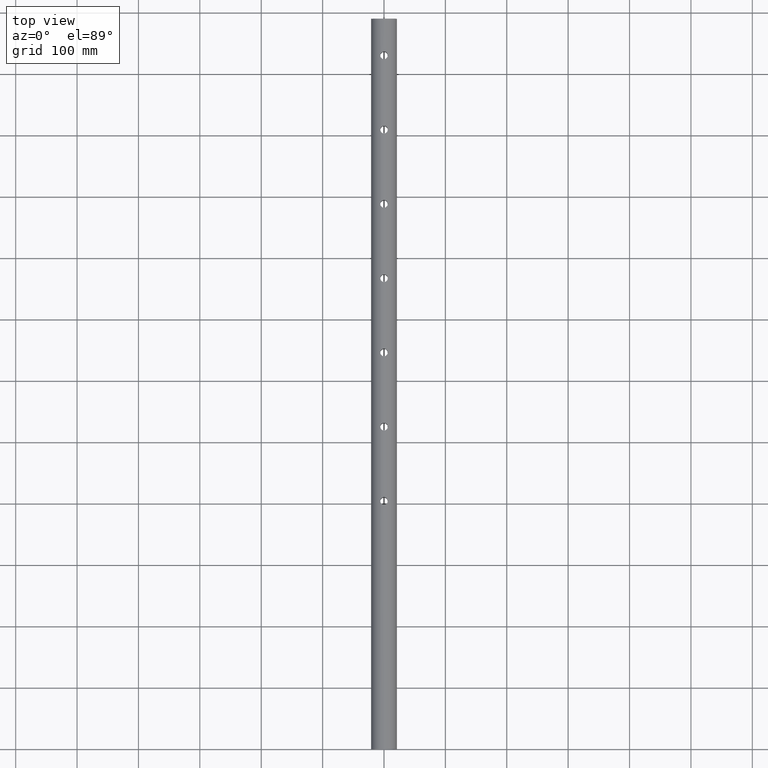
[diagram: clean part render]
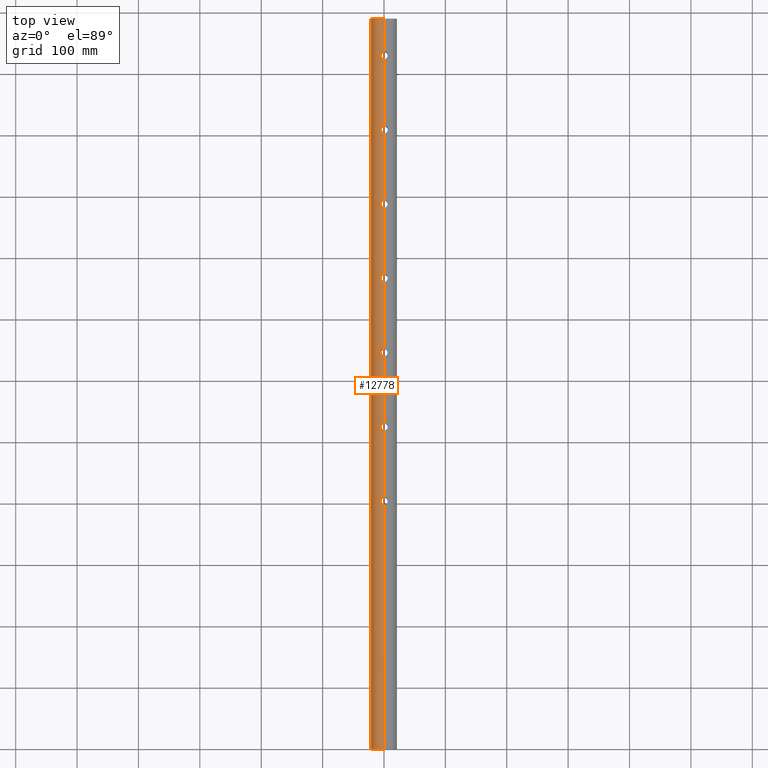
[diagram: same view with one face highlighted and labeled with its STEP entity id]
A machine part, top view. The second image highlights one B-rep face of the part: STEP entity #12778.
In plain terms, the highlighted cylindrical surface (edge-blend (fillet) strip) has radius 21.2 mm, axis along (-0, -1, -0).
Its self-contained STEP definition (entity closure, byte-faithful):
#44 = CARTESIAN_POINT ( 'NONE',  ( -3.037534517596386600, 882.7528956210559300, 20.98389950317865500 ) ) ;
#61 = CARTESIAN_POINT ( 'NONE',  ( -5.971067428228680600, 1009.993934279238800, -20.34177933837445100 ) ) ;
#83 = CARTESIAN_POINT ( 'NONE',  ( 1.017599410026512000E-015, 881.9499999999999300, 21.19999999999999900 ) ) ;
#104 = CARTESIAN_POINT ( 'NONE',  ( -5.246287615906316800, 1012.038596778683500, -20.54183477648129500 ) ) ;
#152 = DIRECTION ( 'NONE',  ( -0.0000000000000000000, -1.000000000000000000, -0.0000000000000000000 ) ) ;
#164 = CARTESIAN_POINT ( 'NONE',  ( -2.691164969478831100, 1124.567130915785800, 21.03169333427417300 ) ) ;
#186 = CARTESIAN_POINT ( 'NONE',  ( -6.010954212363925500, 1129.207213436173300, -20.33014895809900200 ) ) ;
#189 = CARTESIAN_POINT ( 'NONE',  ( 2.596223314720527500E-015, 773.0499999999999500, 21.19999999999999900 ) ) ;
#249 = CARTESIAN_POINT ( 'NONE',  ( -0.4018420492009695500, 639.9500000000002700, -21.20000000000000300 ) ) ;
#250 = CARTESIAN_POINT ( 'NONE',  ( 0.0000000000000000000, 1190.000000000000000, -21.19999999999999900 ) ) ;
#262 = CARTESIAN_POINT ( 'NONE',  ( -3.995559808259795200, 1004.452802185314100, 20.82065224352274400 ) ) ;
#298 = ORIENTED_EDGE ( 'NONE', *, *, #9688, .F. ) ;
#311 = VERTEX_POINT ( 'NONE', #11979 ) ;
#359 = CARTESIAN_POINT ( 'NONE',  ( -3.039946777223705900, 651.2456356951744300, -20.98353648990999400 ) ) ;
#383 = EDGE_CURVE ( 'NONE', #1757, #1064, #3303, .T. ) ;
#421 = CARTESIAN_POINT ( 'NONE',  ( -2.691164969478788000, 519.5671309157855800, -21.03169333427418100 ) ) ;
#426 = CARTESIAN_POINT ( 'NONE',  ( -1.956693228108727500, 530.7384424099434500, -21.11269495595367100 ) ) ;
#478 = CARTESIAN_POINT ( 'NONE',  ( -4.550975023963516700, 528.9912586658209600, -20.70616181969095100 ) ) ;
#479 = CARTESIAN_POINT ( 'NONE',  ( 2.596223311817519400E-015, 1015.049999999999800, 21.19999999999999900 ) ) ;
#493 = CARTESIAN_POINT ( 'NONE',  ( -5.739701135709179200, 647.9539564855246000, -20.40884895650809800 ) ) ;
#503 = LINE ( 'NONE', #4492, #9380 ) ;
#515 = CARTESIAN_POINT ( 'NONE',  ( -5.432916495109359400, 1011.691752854879800, 20.49264998027321400 ) ) ;
#532 = CARTESIAN_POINT ( 'NONE',  ( -4.416944519459526900, 771.1390867482693900, -20.73525746203517500 ) ) ;
#538 = ORIENTED_EDGE ( 'NONE', *, *, #7557, .T. ) ;
#554 = CARTESIAN_POINT ( 'NONE',  ( -6.050000000000026500, 766.9999999999997700, 20.31840298842406500 ) ) ;
#575 = CARTESIAN_POINT ( 'NONE',  ( -1.962128639602869000, 398.2634081040380900, -21.11218947910313700 ) ) ;
#580 = CARTESIAN_POINT ( 'NONE',  ( 2.596223311817519400E-015, 1136.049999999999700, 21.19999999999999900 ) ) ;
#584 = CARTESIAN_POINT ( 'NONE',  ( -6.050000000000026500, 887.9999999999997700, 20.31840298842406500 ) ) ;
#594 = CARTESIAN_POINT ( 'NONE',  ( 2.596223314720527500E-015, 773.0499999999999500, 21.19999999999999900 ) ) ;
#600 = B_SPLINE_CURVE_WITH_KNOTS ( 'NONE', 3,
 ( #12566, #9448, #5330, #987, #5277, #12607, #6306, #7348, #13683, #3301, #8410, #2112, #3211, #44, #6394, #8453, #9503, #4317, #11625, #83 ),
 .UNSPECIFIED., .F., .F.,
 ( 4, 2, 2, 2, 2, 2, 2, 2, 2, 4 ),
 ( 0.02851990170237044000, 0.02970786433669814900, 0.03089582697102585800, 0.03208378960535356700, 0.03327175223968127600, 0.03386573355684524600, 0.03445971487400921500, 0.03564767750833715300, 0.03683564014266509100, 0.03802360277699302900 ),
 .UNSPECIFIED. ) ;
#622 = CARTESIAN_POINT ( 'NONE',  ( -1.578362020633718100, 893.8542087607756900, -21.14482399937956500 ) ) ;
#643 = CARTESIAN_POINT ( 'NONE',  ( -3.695088032338519600, 771.8066926974905800, 20.87813220728821800 ) ) ;
#667 = CARTESIAN_POINT ( 'NONE',  ( -6.000470935930656500, 646.7978770793317800, -20.33309551277983500 ) ) ;
#669 = CARTESIAN_POINT ( 'NONE',  ( -5.971067428228666400, 888.9939342792392800, -20.34177933837446900 ) ) ;
#689 = CARTESIAN_POINT ( 'NONE',  ( -3.530176348994261500, 520.0827436489153100, 20.90467695328665300 ) ) ;
#697 = VECTOR ( 'NONE', #8692, 1000.000000000000000 ) ;
#708 = EDGE_CURVE ( 'NONE', #5092, #6501, #6727, .T. ) ;
#719 = CARTESIAN_POINT ( 'NONE',  ( -4.556882320858705700, 642.0011059572732400, 20.70639862319529800 ) ) ;
#720 = EDGE_CURVE ( 'NONE', #7034, #4182, #1223, .T. ) ;
#744 = CARTESIAN_POINT ( 'NONE',  ( -4.918790398416851100, 528.5279635839250400, 20.62178771226464500 ) ) ;
#788 = CARTESIAN_POINT ( 'NONE',  ( -6.050000000000026500, 645.9999999999997700, 20.31840298842406500 ) ) ;
#793 = DIRECTION ( 'NONE',  ( 0.0000000000000000000, 0.0000000000000000000, 1.000000000000000000 ) ) ;
#812 = CARTESIAN_POINT ( 'NONE',  ( -4.550975023963519400, 1133.991258665820900, 20.70616181969095500 ) ) ;
#824 = CARTESIAN_POINT ( 'NONE',  ( -5.435294836957286400, 764.3137707275374200, 20.49200384173441200 ) ) ;
#876 = CARTESIAN_POINT ( 'NONE',  ( -4.550975023963515800, 649.9912586658209600, 20.70616181969095500 ) ) ;
#896 = CARTESIAN_POINT ( 'NONE',  ( -6.000470935930668000, 1130.797877079331300, 20.33309551277982400 ) ) ;
#908 = CARTESIAN_POINT ( 'NONE',  ( -1.956693228108757900, 1014.738442409943400, -21.11269495595366800 ) ) ;
#911 = CARTESIAN_POINT ( 'NONE',  ( -6.049999999999984700, 1008.601217386111400, -20.31840298842407600 ) ) ;
#920 = CARTESIAN_POINT ( 'NONE',  ( -5.739701135709177400, 647.9539564855246000, 20.40884895650809100 ) ) ;
#946 = CARTESIAN_POINT ( 'NONE',  ( -6.010954212363925500, 1129.207213436173300, 20.33014895809900200 ) ) ;
#949 = VERTEX_POINT ( 'NONE', #2035 ) ;
#960 = ORIENTED_EDGE ( 'NONE', *, *, #8818, .T. ) ;
#964 = CARTESIAN_POINT ( 'NONE',  ( -0.7973842761982444800, 760.9896508834144700, 21.18858675718902200 ) ) ;
#966 = CARTESIAN_POINT ( 'NONE',  ( -5.460655415923692100E-014, 1002.950000000000000, -21.19999999999999900 ) ) ;
#976 = CARTESIAN_POINT ( 'NONE',  ( 2.596223314720527500E-015, 652.0499999999999500, 21.19999999999999900 ) ) ;
#987 = CARTESIAN_POINT ( 'NONE',  ( -5.855829506274332600, 886.4285860276912700, 20.37537209464102300 ) ) ;
#989 = VECTOR ( 'NONE', #9057, 1000.000000000000000 ) ;
#1002 = VERTEX_POINT ( 'NONE', #5481 ) ;
#1012 = CARTESIAN_POINT ( 'NONE',  ( -5.855829506274325500, 1007.428586027691300, -20.37537209464103300 ) ) ;
#1034 = CARTESIAN_POINT ( 'NONE',  ( -5.854683426165437700, 405.5752423035781900, 20.37570154653992600 ) ) ;
#1054 = LINE ( 'NONE', #7690, #6673 ) ;
#1058 = CARTESIAN_POINT ( 'NONE',  ( -2.691164969478768500, 761.5671309157854700, 21.03169333427418400 ) ) ;
#1064 = VERTEX_POINT ( 'NONE', #2459 ) ;
#1078 = EDGE_CURVE ( 'NONE', #11931, #3434, #12195, .T. ) ;
#1175 = CARTESIAN_POINT ( 'NONE',  ( -1.962128639602905400, 640.2634081040382600, -21.11218947910313300 ) ) ;
#1212 = CYLINDRICAL_SURFACE ( 'NONE', #8652, 21.19999999999999900 ) ;
#1223 = B_SPLINE_CURVE_WITH_KNOTS ( 'NONE', 3,
 ( #7948, #9966, #8922, #13368, #12147, #2704, #3818, #5988, #719, #11212, #1618, #2740, #1665, #11029, #11116, #10096, #5859, #6860, #13233, #4959 ),
 .UNSPECIFIED., .F., .F.,
 ( 4, 2, 2, 2, 2, 2, 2, 2, 2, 4 ),
 ( 0.02851990170237044000, 0.02970786433669814900, 0.03089582697102585800, 0.03208378960535356700, 0.03327175223968127600, 0.03386573355684524600, 0.03445971487400921500, 0.03564767750833715300, 0.03683564014266509100, 0.03802360277699302900 ),
 .UNSPECIFIED. ) ;
#1258 = CARTESIAN_POINT ( 'NONE',  ( -3.998291510288341400, 1013.557621856790100, 20.82150015292442200 ) ) ;
#1302 = CARTESIAN_POINT ( 'NONE',  ( -4.141040262045574000, 399.5849413298468000, 20.79210945660208400 ) ) ;
#1307 = ORIENTED_EDGE ( 'NONE', *, *, #1078, .T. ) ;
#1311 = CARTESIAN_POINT ( 'NONE',  ( -5.854683426165408400, 768.5752423035783100, 20.37570154653993300 ) ) ;
#1312 = VERTEX_POINT ( 'NONE', #2251 ) ;
#1326 = CARTESIAN_POINT ( 'NONE',  ( -5.460655415923692100E-014, 639.9500000000000500, -21.19999999999999900 ) ) ;
#1338 = CARTESIAN_POINT ( 'NONE',  ( 2.596251214192388800E-015, 1190.000000000000000, 21.19999999999999900 ) ) ;
#1340 = CARTESIAN_POINT ( 'NONE',  ( -2.691164969478831100, 1003.567130915785700, 21.03169333427417300 ) ) ;
#1372 = DIRECTION ( 'NONE',  ( -0.0000000000000000000, -1.000000000000000000, -0.0000000000000000000 ) ) ;
#1384 = CARTESIAN_POINT ( 'NONE',  ( -2.789947324099599700E-020, 773.0499999999999500, -21.19999999999999900 ) ) ;
#1393 = CARTESIAN_POINT ( 'NONE',  ( -3.037534517596375500, 398.7528956210558700, 20.98389950317865900 ) ) ;
#1402 = CARTESIAN_POINT ( 'NONE',  ( -1.962128639602954000, 1124.263408104038000, 21.11218947910313700 ) ) ;
#1428 = CARTESIAN_POINT ( 'NONE',  ( -6.000470935930662700, 404.7978770793316100, -20.33309551277983100 ) ) ;
#1432 = CARTESIAN_POINT ( 'NONE',  ( -2.685867363320191700, 651.4354839883692400, -21.03237155431430900 ) ) ;
#1440 = CARTESIAN_POINT ( 'NONE',  ( -3.690486255587999100, 399.2018944004346400, 20.87688600400945300 ) ) ;
#1443 = CARTESIAN_POINT ( 'NONE',  ( -5.971067428228664700, 888.9939342792388300, 20.34177933837445100 ) ) ;
#1467 = ORIENTED_EDGE ( 'NONE', *, *, #6893, .T. ) ;
#1474 = CARTESIAN_POINT ( 'NONE',  ( -5.460655415923692100E-014, 1123.950000000000000, -21.19999999999999900 ) ) ;
#1478 = CARTESIAN_POINT ( 'NONE',  ( -4.416944519459526900, 650.1390867482693900, -20.73525746203517500 ) ) ;
#1528 = CARTESIAN_POINT ( 'NONE',  ( -3.039946777223722300, 893.2456356951744300, 20.98353648990999100 ) ) ;
#1555 = CARTESIAN_POINT ( 'NONE',  ( -3.690486255587968100, 1125.201894400434900, -20.87688600400945300 ) ) ;
#1568 = ORIENTED_EDGE ( 'NONE', *, *, #11431, .T. ) ;
#1570 = CARTESIAN_POINT ( 'NONE',  ( -5.246287615906199500, 891.0385967786833100, 20.54183477648132300 ) ) ;
#1575 = ORIENTED_EDGE ( 'NONE', *, *, #12910, .F. ) ;
#1603 = CARTESIAN_POINT ( 'NONE',  ( -5.854683426165407500, 768.5752423035780800, -20.37570154653993600 ) ) ;
#1618 = CARTESIAN_POINT ( 'NONE',  ( -3.995559808259872400, 641.4528021853143400, 20.82065224352272600 ) ) ;
#1629 = CARTESIAN_POINT ( 'NONE',  ( -6.050000000000026500, 1008.999999999999900, 20.31840298842406200 ) ) ;
#1630 = CARTESIAN_POINT ( 'NONE',  ( -4.141040262045609500, 520.5849413298468600, 20.79210945660207700 ) ) ;
#1652 = CARTESIAN_POINT ( 'NONE',  ( -1.956693228108727500, 772.7384424099434500, -21.11269495595367100 ) ) ;
#1656 = CARTESIAN_POINT ( 'NONE',  ( -5.855829506274346800, 402.4285860276914900, -20.37537209464102300 ) ) ;
#1665 = CARTESIAN_POINT ( 'NONE',  ( -3.530176348994261500, 641.0827436489153100, 20.90467695328665300 ) ) ;
#1681 = VECTOR ( 'NONE', #5901, 1000.000000000000000 ) ;
#1682 = CARTESIAN_POINT ( 'NONE',  ( -3.695088032338512500, 529.8066926974904600, -20.87813220728822800 ) ) ;
#1700 = CARTESIAN_POINT ( 'NONE',  ( -5.246287615906199500, 891.0385967786837700, -20.54183477648132700 ) ) ;
#1702 = CARTESIAN_POINT ( 'NONE',  ( -1.956693228108754800, 1135.738442409943400, 21.11269495595366400 ) ) ;
#1708 = EDGE_CURVE ( 'NONE', #1064, #1002, #11361, .T. ) ;
#1735 = CARTESIAN_POINT ( 'NONE',  ( -6.000470935930656500, 767.7978770793319000, -20.33309551277983500 ) ) ;
#1757 = VERTEX_POINT ( 'NONE', #6028 ) ;
#1769 = CARTESIAN_POINT ( 'NONE',  ( -1.575983268988505200, 519.1453954084810200, 21.14493573380449800 ) ) ;
#1786 = VERTEX_POINT ( 'NONE', #10380 ) ;
#1796 = CARTESIAN_POINT ( 'NONE',  ( -6.049999999999982100, 403.6012173861111600, -20.31840298842407600 ) ) ;
#1815 = CARTESIAN_POINT ( 'NONE',  ( 2.596251214192388800E-015, 0.0000000000000000000, 21.19999999999999900 ) ) ;
#1847 = CARTESIAN_POINT ( 'NONE',  ( -6.050000000000026500, 1130.000000000000000, 20.31840298842406200 ) ) ;
#1861 = EDGE_CURVE ( 'NONE', #5000, #8882, #10830, .T. ) ;
#1869 = CARTESIAN_POINT ( 'NONE',  ( -4.807465143467420700, 763.3055751110836100, -20.64897190406545500 ) ) ;
#1915 = CARTESIAN_POINT ( 'NONE',  ( -3.530176348994206000, 762.0827436489155400, -20.90467695328666800 ) ) ;
#1917 = CARTESIAN_POINT ( 'NONE',  ( -6.039985286317756800, 646.4010449198486900, 20.32139272603728100 ) ) ;
#1932 = ORIENTED_EDGE ( 'NONE', *, *, #10193, .T. ) ;
#1935 = VERTEX_POINT ( 'NONE', #5497 ) ;
#1938 = CARTESIAN_POINT ( 'NONE',  ( -6.050000000000026500, 1130.000000000000000, 20.31840298842406200 ) ) ;
#1954 = CARTESIAN_POINT ( 'NONE',  ( -3.995559808259872400, 762.4528021853145700, 20.82065224352272600 ) ) ;
#1998 = LINE ( 'NONE', #2223, #6109 ) ;
#2004 = CARTESIAN_POINT ( 'NONE',  ( -5.249504339499842400, 1005.966322272377900, -20.54104344939933200 ) ) ;
#2008 = CARTESIAN_POINT ( 'NONE',  ( -2.790237624912721000E-020, 1136.049999999999700, -21.19999999999999900 ) ) ;
#2009 = CARTESIAN_POINT ( 'NONE',  ( -5.460655415923692100E-014, 760.9500000000000500, -21.19999999999999900 ) ) ;
#2010 = CARTESIAN_POINT ( 'NONE',  ( -1.956693228108736100, 651.7384424099435600, 21.11269495595367500 ) ) ;
#2021 = CARTESIAN_POINT ( 'NONE',  ( -3.998291510288358700, 408.5576218567900400, 20.82150015292442900 ) ) ;
#2031 = CARTESIAN_POINT ( 'NONE',  ( -5.855829506274325500, 1128.428586027691200, 20.37537209464103300 ) ) ;
#2035 = CARTESIAN_POINT ( 'NONE',  ( 1.017599410026512000E-015, 881.9499999999999300, 21.19999999999999900 ) ) ;
#2049 = CARTESIAN_POINT ( 'NONE',  ( -0.3960930939026471300, 410.0500000000000100, -21.19999999999999900 ) ) ;
#2051 = CARTESIAN_POINT ( 'NONE',  ( -5.249504339499885900, 763.9663222723781900, -20.54104344939932100 ) ) ;
#2066 = CARTESIAN_POINT ( 'NONE',  ( -2.685867363320207700, 409.4354839883689000, 21.03237155431429500 ) ) ;
#2073 = CARTESIAN_POINT ( 'NONE',  ( -6.049999999999984700, 1129.601217386111600, 20.31840298842407600 ) ) ;
#2104 = EDGE_CURVE ( 'NONE', #5031, #7896, #5958, .T. ) ;
#2112 = CARTESIAN_POINT ( 'NONE',  ( -3.690486255588049300, 883.2018944004348700, 20.87688600400944900 ) ) ;
#2124 = ORIENTED_EDGE ( 'NONE', *, *, #9884, .T. ) ;
#2141 = CARTESIAN_POINT ( 'NONE',  ( -3.530176348994253000, 399.0827436489152500, 20.90467695328665300 ) ) ;
#2165 = CARTESIAN_POINT ( 'NONE',  ( -5.460655415923692100E-014, 760.9500000000000500, -21.19999999999999900 ) ) ;
#2196 = DIRECTION ( 'NONE',  ( 0.0000000000000000000, 1.000000000000000000, 0.0000000000000000000 ) ) ;
#2210 = CARTESIAN_POINT ( 'NONE',  ( -3.995559808259777900, 641.4528021853142300, -20.82065224352274400 ) ) ;
#2211 = CARTESIAN_POINT ( 'NONE',  ( -3.695088032338495600, 408.8066926974908600, 20.87813220728823200 ) ) ;
#2223 = CARTESIAN_POINT ( 'NONE',  ( 2.596251214192388800E-015, 1190.000000000000000, 21.19999999999999900 ) ) ;
#2230 = CARTESIAN_POINT ( 'NONE',  ( 1.017599410026512000E-015, 760.9499999999999300, 21.19999999999999900 ) ) ;
#2251 = CARTESIAN_POINT ( 'NONE',  ( -6.050000000000026500, 1008.999999999999900, -20.31840298842406200 ) ) ;
#2330 = CARTESIAN_POINT ( 'NONE',  ( -4.801635101803245000, 1012.685894702153100, -20.64947484371208100 ) ) ;
#2343 = CARTESIAN_POINT ( 'NONE',  ( -4.416944519459541100, 1013.139086748269300, 20.73525746203516500 ) ) ;
#2348 = CARTESIAN_POINT ( 'NONE',  ( -0.7973842761982407000, 1123.989650883414900, 21.18858675718902500 ) ) ;
#2364 = AXIS2_PLACEMENT_3D ( 'NONE', #9257, #7206, #793 ) ;
#2386 = CARTESIAN_POINT ( 'NONE',  ( -4.416944519459525200, 771.1390867482692800, 20.73525746203517200 ) ) ;
#2404 = ORIENTED_EDGE ( 'NONE', *, *, #7700, .T. ) ;
#2406 = CARTESIAN_POINT ( 'NONE',  ( -5.460655415923692100E-014, 1002.950000000000000, 21.19999999999999900 ) ) ;
#2424 = CARTESIAN_POINT ( 'NONE',  ( -5.249504339499854800, 400.9663222723780200, 20.54104344939932500 ) ) ;
#2425 = LINE ( 'NONE', #8602, #3760 ) ;
#2445 = CARTESIAN_POINT ( 'NONE',  ( -1.962128639602905400, 519.2634081040382600, -21.11218947910313300 ) ) ;
#2459 = CARTESIAN_POINT ( 'NONE',  ( 1.017599410026512000E-015, 518.9499999999999300, 21.19999999999999900 ) ) ;
#2472 = CARTESIAN_POINT ( 'NONE',  ( -2.691164969478735600, 398.5671309157853600, 21.03169333427418800 ) ) ;
#2473 = CARTESIAN_POINT ( 'NONE',  ( -4.416944519459525200, 892.1390867482695100, 20.73525746203517200 ) ) ;
#2518 = ORIENTED_EDGE ( 'NONE', *, *, #8353, .T. ) ;
#2520 = ORIENTED_EDGE ( 'NONE', *, *, #8352, .T. ) ;
#2524 = EDGE_CURVE ( 'NONE', #2966, #1786, #6955, .T. ) ;
#2526 = EDGE_CURVE ( 'NONE', #3005, #8197, #11328, .T. ) ;
#2573 = CARTESIAN_POINT ( 'NONE',  ( -4.416944519459526900, 529.1390867482693900, -20.73525746203517500 ) ) ;
#2585 = CARTESIAN_POINT ( 'NONE',  ( -5.738210485053230900, 1128.042655345087000, -20.40925260374660900 ) ) ;
#2640 = CARTESIAN_POINT ( 'NONE',  ( -4.550975023963476800, 407.9912586658211400, -20.70616181969096200 ) ) ;
#2667 = CARTESIAN_POINT ( 'NONE',  ( -5.971067428228664700, 767.9939342792387200, 20.34177933837445100 ) ) ;
#2687 = CARTESIAN_POINT ( 'NONE',  ( -2.691164969478831100, 1124.567130915785800, -21.03169333427417300 ) ) ;
#2704 = CARTESIAN_POINT ( 'NONE',  ( -5.435294836957286400, 643.3137707275371900, 20.49200384173441200 ) ) ;
#2714 = CARTESIAN_POINT ( 'NONE',  ( -5.971067428228684200, 1009.993934279238800, 20.34177933837445100 ) ) ;
#2721 = CARTESIAN_POINT ( 'NONE',  ( -6.000470935930656500, 525.7978770793317800, -20.33309551277983500 ) ) ;
#2728 = CARTESIAN_POINT ( 'NONE',  ( -2.685867363320191700, 772.4354839883692400, -21.03237155431430900 ) ) ;
#2731 = CARTESIAN_POINT ( 'NONE',  ( -5.460655415923692100E-014, 397.9500000000000500, -21.19999999999999900 ) ) ;
#2732 = CARTESIAN_POINT ( 'NONE',  ( -3.039946777223705900, 893.2456356951743100, -20.98353648990999400 ) ) ;
#2740 = CARTESIAN_POINT ( 'NONE',  ( -3.690486255588049300, 641.2018944004347500, 20.87688600400944900 ) ) ;
#2752 = CARTESIAN_POINT ( 'NONE',  ( -1.956693228108736100, 772.7384424099435600, 21.11269495595367500 ) ) ;
#2760 = B_SPLINE_CURVE_WITH_KNOTS ( 'NONE', 3,
 ( #4236, #911, #10490, #1012, #12586, #8278, #2004, #6181, #6281, #9334, #10396, #10439, #12635, #7280, #13660, #4146, #6233, #11509, #7323, #966 ),
 .UNSPECIFIED., .F., .F.,
 ( 4, 2, 2, 2, 2, 2, 2, 2, 2, 4 ),
 ( 0.02851990170237019000, 0.02970786433669800300, 0.03089582697102581700, 0.03208378960535363000, 0.03327175223968144300, 0.03386573355684535000, 0.03445971487400925600, 0.03564767750833706900, 0.03683564014266488300, 0.03802360277699269600 ),
 .UNSPECIFIED. ) ;
#2764 = ORIENTED_EDGE ( 'NONE', *, *, #11897, .T. ) ;
#2775 = CARTESIAN_POINT ( 'NONE',  ( -5.246287615906199500, 770.0385967786837700, -20.54183477648132700 ) ) ;
#2789 = CARTESIAN_POINT ( 'NONE',  ( -2.685867363320216100, 1135.435483988369000, 21.03237155431430200 ) ) ;
#2822 = CARTESIAN_POINT ( 'NONE',  ( -4.550975023963515800, 528.9912586658210800, 20.70616181969095500 ) ) ;
#2833 = CARTESIAN_POINT ( 'NONE',  ( -0.7926788128932325000, 1136.011210126298200, 21.18882887118840600 ) ) ;
#2868 = CARTESIAN_POINT ( 'NONE',  ( -5.435294836957286400, 885.3137707275370800, -20.49200384173441200 ) ) ;
#2889 = ORIENTED_EDGE ( 'NONE', *, *, #720, .F. ) ;
#2895 = CARTESIAN_POINT ( 'NONE',  ( -6.049999999999978500, 766.6012173861108700, 20.31840298842407600 ) ) ;
#2930 = CARTESIAN_POINT ( 'NONE',  ( -6.049999999999982100, 1130.199429488780900, 20.31840298842406900 ) ) ;
#2966 = VERTEX_POINT ( 'NONE', #13093 ) ;
#2967 = CARTESIAN_POINT ( 'NONE',  ( -5.460655415923692100E-014, 881.9500000000000500, -21.19999999999999900 ) ) ;
#2973 = CARTESIAN_POINT ( 'NONE',  ( -4.416944519459525200, 529.1390867482693900, 20.73525746203517200 ) ) ;
#2999 = CARTESIAN_POINT ( 'NONE',  ( -4.556882320858705700, 763.0011059572733500, 20.70639862319529800 ) ) ;
#3005 = VERTEX_POINT ( 'NONE', #10270 ) ;
#3006 = CARTESIAN_POINT ( 'NONE',  ( -3.695088032338519600, 650.8066926974904600, 20.87813220728821800 ) ) ;
#3010 = CARTESIAN_POINT ( 'NONE',  ( -6.049999999999978500, 887.6012173861108700, -20.31840298842407200 ) ) ;
#3016 = ORIENTED_EDGE ( 'NONE', *, *, #6741, .T. ) ;
#3018 = EDGE_CURVE ( 'NONE', #9609, #5092, #9686, .T. ) ;
#3081 = CARTESIAN_POINT ( 'NONE',  ( -3.695088032338478700, 1013.806692697490500, -20.87813220728822800 ) ) ;
#3085 = CARTESIAN_POINT ( 'NONE',  ( -6.050000000000026500, 524.9999999999997700, -20.31840298842406200 ) ) ;
#3090 = CARTESIAN_POINT ( 'NONE',  ( -3.695088032338478700, 1134.806692697490700, -20.87813220728822800 ) ) ;
#3146 = EDGE_CURVE ( 'NONE', #12580, #3005, #7714, .T. ) ;
#3161 = CARTESIAN_POINT ( 'NONE',  ( -1.956693228108747000, 409.7384424099435000, 21.11269495595366400 ) ) ;
#3168 = CARTESIAN_POINT ( 'NONE',  ( -3.995559808259795200, 1125.452802185314300, 20.82065224352274400 ) ) ;
#3211 = CARTESIAN_POINT ( 'NONE',  ( -3.530176348994261500, 883.0827436489153100, 20.90467695328665300 ) ) ;
#3252 = CARTESIAN_POINT ( 'NONE',  ( -2.790237624912721000E-020, 1136.049999999999700, -21.19999999999999900 ) ) ;
#3255 = EDGE_CURVE ( 'NONE', #9179, #11931, #4386, .T. ) ;
#3256 = CARTESIAN_POINT ( 'NONE',  ( -5.738210485053230900, 644.0426553450871600, -20.40925260374660900 ) ) ;
#3293 = EDGE_CURVE ( 'NONE', #10206, #4407, #11864, .T. ) ;
#3300 = CARTESIAN_POINT ( 'NONE',  ( -3.690486255587949400, 641.2018944004346400, -20.87688600400945700 ) ) ;
#3301 = CARTESIAN_POINT ( 'NONE',  ( -4.141040262045609500, 883.5849413298466300, 20.79210945660207700 ) ) ;
#3303 = B_SPLINE_CURVE_WITH_KNOTS ( 'NONE', 3,
 ( #10072, #4839, #12068, #8052, #8002, #5829, #4875, #3831, #11128, #1630, #6830, #9937, #689, #6870, #3737, #12162, #1769, #9099, #4924, #11041 ),
 .UNSPECIFIED., .F., .F.,
 ( 4, 2, 2, 2, 2, 2, 2, 2, 2, 4 ),
 ( 0.02851990170237044000, 0.02970786433669814900, 0.03089582697102585800, 0.03208378960535356700, 0.03327175223968127600, 0.03386573355684524600, 0.03445971487400921500, 0.03564767750833715300, 0.03683564014266509100, 0.03802360277699302900 ),
 .UNSPECIFIED. ) ;
#3322 = CARTESIAN_POINT ( 'NONE',  ( -5.854683426165437700, 1010.575242303578100, -20.37570154653992600 ) ) ;
#3369 = CARTESIAN_POINT ( 'NONE',  ( -6.049999999999986500, 1009.199429488781600, -20.31840298842408300 ) ) ;
#3372 = CARTESIAN_POINT ( 'NONE',  ( 0.0000000000000000000, 1190.000000000000000, 0.0000000000000000000 ) ) ;
#3431 = CARTESIAN_POINT ( 'NONE',  ( -3.037534517596336400, 640.7528956210560400, -20.98389950317866600 ) ) ;
#3434 = VERTEX_POINT ( 'NONE', #10048 ) ;
#3463 = ORIENTED_EDGE ( 'NONE', *, *, #3255, .T. ) ;
#3478 = CARTESIAN_POINT ( 'NONE',  ( -0.4018420492009695500, 518.9500000000001600, -21.20000000000000300 ) ) ;
#3493 = CARTESIAN_POINT ( 'NONE',  ( -3.037534517596409700, 1003.752895621055900, 20.98389950317865500 ) ) ;
#3500 = CARTESIAN_POINT ( 'NONE',  ( -2.789947324099599700E-020, 652.0499999999999500, -21.19999999999999900 ) ) ;
#3541 = CARTESIAN_POINT ( 'NONE',  ( -4.918790398416891000, 407.5279635839249300, -20.62178771226463800 ) ) ;
#3586 = CARTESIAN_POINT ( 'NONE',  ( 2.596251214192388800E-015, 1190.000000000000000, 21.19999999999999900 ) ) ;
#3596 = CARTESIAN_POINT ( 'NONE',  ( -4.807465143467372700, 400.3055751110836700, 20.64897190406546200 ) ) ;
#3599 = CARTESIAN_POINT ( 'NONE',  ( -1.578362020633712600, 893.8542087607754600, 21.14482399937956500 ) ) ;
#3619 = CARTESIAN_POINT ( 'NONE',  ( -0.7926788128932711300, 531.0112101262986900, -21.18882887118840200 ) ) ;
#3631 = CARTESIAN_POINT ( 'NONE',  ( -1.575983268988494300, 1124.145395408481100, -21.14493573380449800 ) ) ;
#3658 = CARTESIAN_POINT ( 'NONE',  ( -5.739701135709182700, 1010.953956485524600, 20.40884895650809500 ) ) ;
#3662 = CARTESIAN_POINT ( 'NONE',  ( -5.435294836957286400, 522.3137707275370800, -20.49200384173441200 ) ) ;
#3669 = CARTESIAN_POINT ( 'NONE',  ( -5.739701135709179200, 526.9539564855246000, -20.40884895650809800 ) ) ;
#3675 = ORIENTED_EDGE ( 'NONE', *, *, #10016, .T. ) ;
#3677 = EDGE_CURVE ( 'NONE', #3749, #7034, #9647, .T. ) ;
#3687 = CARTESIAN_POINT ( 'NONE',  ( -5.432916495109355800, 890.6917528548796100, 20.49264998027320700 ) ) ;
#3710 = CARTESIAN_POINT ( 'NONE',  ( -3.037534517596409700, 1124.752895621056300, -20.98389950317865500 ) ) ;
#3713 = CARTESIAN_POINT ( 'NONE',  ( -5.971067428228666400, 767.9939342792390600, -20.34177933837446900 ) ) ;
#3718 = CARTESIAN_POINT ( 'NONE',  ( -5.432916495109366500, 648.6917528548799500, -20.49264998027321000 ) ) ;
#3726 = FACE_OUTER_BOUND ( 'NONE', #10927, .T. ) ;
#3736 = CARTESIAN_POINT ( 'NONE',  ( -5.854683426165435900, 1010.575242303577600, 20.37570154653992200 ) ) ;
#3737 = CARTESIAN_POINT ( 'NONE',  ( -2.691164969478768500, 519.5671309157855800, 21.03169333427418400 ) ) ;
#3749 = VERTEX_POINT ( 'NONE', #976 ) ;
#3760 = VECTOR ( 'NONE', #11768, 1000.000000000000000 ) ;
#3762 = CARTESIAN_POINT ( 'NONE',  ( -4.918790398416850200, 649.5279635839249300, -20.62178771226464500 ) ) ;
#3764 = CARTESIAN_POINT ( 'NONE',  ( -6.049999999999990900, 888.1994294887813300, -20.31840298842407900 ) ) ;
#3803 = CARTESIAN_POINT ( 'NONE',  ( 0.0000000000000000000, 1190.000000000000000, -21.19999999999999900 ) ) ;
#3808 = CARTESIAN_POINT ( 'NONE',  ( -3.037534517596384800, 398.7528956210559800, -20.98389950317865500 ) ) ;
#3809 = CARTESIAN_POINT ( 'NONE',  ( -6.050000000000026500, 645.9999999999997700, -20.31840298842406200 ) ) ;
#3816 = ORIENTED_EDGE ( 'NONE', *, *, #3293, .T. ) ;
#3818 = CARTESIAN_POINT ( 'NONE',  ( -5.249504339499884200, 642.9663222723780800, 20.54104344939931800 ) ) ;
#3831 = CARTESIAN_POINT ( 'NONE',  ( -4.807465143467418900, 521.3055751110839500, 20.64897190406545800 ) ) ;
#3837 = ORIENTED_EDGE ( 'NONE', *, *, #11699, .T. ) ;
#3845 = CARTESIAN_POINT ( 'NONE',  ( -5.432916495109366500, 769.6917528548798400, -20.49264998027321000 ) ) ;
#3864 = B_SPLINE_CURVE_WITH_KNOTS ( 'NONE', 3,
 ( #12074, #6836, #3619, #6759, #426, #7801, #9944, #1682, #12173, #2573, #478, #10913, #9904, #7930, #5714, #3669, #11004, #5798, #2721, #7883, #13078, #10955 ),
 .UNSPECIFIED., .F., .F.,
 ( 4, 2, 2, 2, 2, 2, 2, 2, 2, 2, 4 ),
 ( 0.01901438074518129900, 0.02020257086483013100, 0.02139076098447896200, 0.02257895110412779300, 0.02376714122377662800, 0.02436123628360092500, 0.02495533134342522300, 0.02614352146307354400, 0.02733171158272186500, 0.02792580664254602800, 0.02851990170237019000 ),
 .UNSPECIFIED. ) ;
#3886 = CARTESIAN_POINT ( 'NONE',  ( -6.050000000000026500, 766.9999999999997700, -20.31840298842406200 ) ) ;
#3891 = CARTESIAN_POINT ( 'NONE',  ( -5.739701135709179200, 889.9539564855246000, -20.40884895650809800 ) ) ;
#3927 = CARTESIAN_POINT ( 'NONE',  ( -4.801635101803244200, 528.6858947021532900, 20.64947484371208100 ) ) ;
#3938 = CARTESIAN_POINT ( 'NONE',  ( -4.550975023963516700, 891.9912586658208500, -20.70616181969095100 ) ) ;
#3968 = CARTESIAN_POINT ( 'NONE',  ( -3.998291510288342300, 1134.557621856790100, -20.82150015292442500 ) ) ;
#4010 = CARTESIAN_POINT ( 'NONE',  ( -3.039946777223665900, 1135.245635695174500, -20.98353648991000100 ) ) ;
#4011 = CARTESIAN_POINT ( 'NONE',  ( -1.575983268988494500, 761.1453954084811400, -21.14493573380449800 ) ) ;
#4020 = CARTESIAN_POINT ( 'NONE',  ( -5.971067428228664700, 525.9939342792387200, 20.34177933837445100 ) ) ;
#4049 = CARTESIAN_POINT ( 'NONE',  ( -6.039985286317763900, 1130.401044919848800, -20.32139272603728500 ) ) ;
#4055 = CARTESIAN_POINT ( 'NONE',  ( -4.556882320858703000, 884.0011059572732400, -20.70639862319528700 ) ) ;
#4094 = VERTEX_POINT ( 'NONE', #5341 ) ;
#4125 = CARTESIAN_POINT ( 'NONE',  ( -6.050000000000026500, 766.9999999999997700, 20.31840298842406500 ) ) ;
#4127 = CARTESIAN_POINT ( 'NONE',  ( -5.971067428228684200, 1130.993934279239100, 20.34177933837445100 ) ) ;
#4146 = CARTESIAN_POINT ( 'NONE',  ( -1.962128639602954000, 1003.263408104038100, -21.11218947910313700 ) ) ;
#4150 = CARTESIAN_POINT ( 'NONE',  ( -5.246287615906316800, 1133.038596778683500, -20.54183477648129500 ) ) ;
#4151 = CARTESIAN_POINT ( 'NONE',  ( -0.4018420492009695500, 760.9500000000001600, -21.20000000000000300 ) ) ;
#4167 = CARTESIAN_POINT ( 'NONE',  ( -5.246287615906230600, 407.0385967786836000, 20.54183477648131300 ) ) ;
#4174 = CARTESIAN_POINT ( 'NONE',  ( -4.807465143467353200, 1126.305575111084000, 20.64897190406547300 ) ) ;
#4182 = VERTEX_POINT ( 'NONE', #5475 ) ;
#4189 = CARTESIAN_POINT ( 'NONE',  ( -3.530176348994261500, 762.0827436489153100, 20.90467695328665300 ) ) ;
#4198 = CARTESIAN_POINT ( 'NONE',  ( -0.7973842761982398200, 760.9896508834147000, -21.18858675718902500 ) ) ;
#4236 = CARTESIAN_POINT ( 'NONE',  ( -6.050000000000026500, 1008.999999999999900, -20.31840298842406200 ) ) ;
#4256 = CARTESIAN_POINT ( 'NONE',  ( 0.0000000000000000000, 1190.000000000000000, -21.19999999999999900 ) ) ;
#4257 = CARTESIAN_POINT ( 'NONE',  ( -6.050000000000026500, 645.9999999999997700, -20.31840298842406200 ) ) ;
#4259 = CARTESIAN_POINT ( 'NONE',  ( -5.432916495109359400, 406.6917528548796100, 20.49264998027320700 ) ) ;
#4315 = CARTESIAN_POINT ( 'NONE',  ( -5.249504339499885900, 642.9663222723781900, -20.54104344939932100 ) ) ;
#4317 = CARTESIAN_POINT ( 'NONE',  ( -0.7973842761982444800, 881.9896508834144700, 21.18858675718902200 ) ) ;
#4344 = CARTESIAN_POINT ( 'NONE',  ( -0.7926788128932325000, 1015.011210126298200, 21.18882887118840600 ) ) ;
#4386 = B_SPLINE_CURVE_WITH_KNOTS ( 'NONE', 3,
 ( #2008, #9155, #9247, #9340, #5166, #10258, #4010, #3090, #3968, #5068, #12405, #6102, #10400, #4150, #13466, #7151, #8184, #10306, #11369, #4049, #11461, #5257 ),
 .UNSPECIFIED., .F., .F.,
 ( 4, 2, 2, 2, 2, 2, 2, 2, 2, 2, 4 ),
 ( 0.01901438074518130300, 0.02020257086482991200, 0.02139076098447852100, 0.02257895110412713400, 0.02376714122377574700, 0.02436123628360005100, 0.02495533134342435600, 0.02614352146307296500, 0.02733171158272157700, 0.02792580664254588200, 0.02851990170237019000 ),
 .UNSPECIFIED. ) ;
#4407 = VERTEX_POINT ( 'NONE', #9348 ) ;
#4429 = CARTESIAN_POINT ( 'NONE',  ( -2.685867363320216100, 1014.435483988368400, 21.03237155431430200 ) ) ;
#4460 = CARTESIAN_POINT ( 'NONE',  ( -5.738210485053230900, 1007.042655345087000, 20.40925260374660900 ) ) ;
#4467 = CARTESIAN_POINT ( 'NONE',  ( -4.918790398416980700, 1012.527963583925000, -20.62178771226461600 ) ) ;
#4472 = VECTOR ( 'NONE', #12032, 1000.000000000000000 ) ;
#4490 = CARTESIAN_POINT ( 'NONE',  ( -1.575983268988494300, 1124.145395408481100, 21.14493573380449800 ) ) ;
#4492 = CARTESIAN_POINT ( 'NONE',  ( 2.596251214192388800E-015, 1190.000000000000000, 21.19999999999999900 ) ) ;
#4527 = CARTESIAN_POINT ( 'NONE',  ( -5.460655415923692100E-014, 1123.950000000000000, 21.19999999999999900 ) ) ;
#4549 = B_SPLINE_CURVE_WITH_KNOTS ( 'NONE', 3,
 ( #9830, #12866, #11824, #5551, #4460, #11773, #5516, #12906, #6597, #10880, #262, #6637, #7633, #3493, #1340, #12997, #4634, #8696, #7675, #2406 ),
 .UNSPECIFIED., .F., .F.,
 ( 4, 2, 2, 2, 2, 2, 2, 2, 2, 4 ),
 ( 0.02851990170237019000, 0.02970786433669800300, 0.03089582697102581700, 0.03208378960535363000, 0.03327175223968144300, 0.03386573355684535000, 0.03445971487400925600, 0.03564767750833706900, 0.03683564014266488300, 0.03802360277699269600 ),
 .UNSPECIFIED. ) ;
#4557 = CARTESIAN_POINT ( 'NONE',  ( -0.3960930939026426900, 652.0499999999999500, -21.20000000000000600 ) ) ;
#4565 = CARTESIAN_POINT ( 'NONE',  ( -0.7973842761982009600, 397.9896508834145800, 21.18858675718902200 ) ) ;
#4586 = LINE ( 'NONE', #5442, #5861 ) ;
#4591 = CARTESIAN_POINT ( 'NONE',  ( -6.049999999999984700, 1129.601217386111600, -20.31840298842407600 ) ) ;
#4593 = CARTESIAN_POINT ( 'NONE',  ( -3.695088032338495600, 408.8066926974906300, -20.87813220728822500 ) ) ;
#4597 = ORIENTED_EDGE ( 'NONE', *, *, #383, .F. ) ;
#4604 = CARTESIAN_POINT ( 'NONE',  ( -1.962128639602841700, 398.2634081040382600, 21.11218947910313300 ) ) ;
#4614 = CARTESIAN_POINT ( 'NONE',  ( -0.4018420492009687800, 1123.950000000000300, 21.19999999999999900 ) ) ;
#4619 = ORIENTED_EDGE ( 'NONE', *, *, #3018, .F. ) ;
#4634 = CARTESIAN_POINT ( 'NONE',  ( -1.575983268988494300, 1003.145395408481500, 21.14493573380449800 ) ) ;
#4642 = CARTESIAN_POINT ( 'NONE',  ( -5.246287615906232400, 407.0385967786836000, -20.54183477648132000 ) ) ;
#4655 = CARTESIAN_POINT ( 'NONE',  ( -6.039985286317756800, 888.4010449198484600, 20.32139272603728100 ) ) ;
#4668 = CARTESIAN_POINT ( 'NONE',  ( -4.141040262045609500, 520.5849413298465200, -20.79210945660208100 ) ) ;
#4687 = CARTESIAN_POINT ( 'NONE',  ( -6.050000000000026500, 403.9999999999998900, -20.31840298842406200 ) ) ;
#4698 = CARTESIAN_POINT ( 'NONE',  ( -0.3960930939026379700, 894.0499999999999500, 21.19999999999999600 ) ) ;
#4711 = CARTESIAN_POINT ( 'NONE',  ( -0.7973842761982398200, 518.9896508834147000, -21.18858675718902500 ) ) ;
#4712 = B_SPLINE_CURVE_WITH_KNOTS ( 'NONE', 3,
 ( #10605, #5373, #9358, #12664, #3161, #2066, #6345, #2211, #2021, #6257, #11577, #10417, #11529, #4167, #4259, #12759, #1034, #8351, #9551, #7259, #13631, #8498 ),
 .UNSPECIFIED., .F., .F.,
 ( 4, 2, 2, 2, 2, 2, 2, 2, 2, 2, 4 ),
 ( 0.01901438074518154600, 0.02020257086483030100, 0.02139076098447905600, 0.02257895110412781000, 0.02376714122377656900, 0.02436123628360088700, 0.02495533134342520900, 0.02614352146307371400, 0.02733171158272221900, 0.02792580664254638900, 0.02851990170237056100 ),
 .UNSPECIFIED. ) ;
#4747 = CARTESIAN_POINT ( 'NONE',  ( -6.050000000000026500, 887.9999999999997700, 20.31840298842406500 ) ) ;
#4749 = CARTESIAN_POINT ( 'NONE',  ( -6.000470935930668000, 1009.797877079331200, 20.33309551277982400 ) ) ;
#4762 = VERTEX_POINT ( 'NONE', #7127 ) ;
#4774 = ORIENTED_EDGE ( 'NONE', *, *, #8469, .T. ) ;
#4783 = LINE ( 'NONE', #8845, #11674 ) ;
#4793 = CARTESIAN_POINT ( 'NONE',  ( -4.918790398416851100, 770.5279635839249300, 20.62178771226464500 ) ) ;
#4822 = CARTESIAN_POINT ( 'NONE',  ( -5.432916495109366500, 890.6917528548798400, -20.49264998027321000 ) ) ;
#4837 = CARTESIAN_POINT ( 'NONE',  ( -0.7926788128932649200, 773.0112101262986900, 21.18882887118840600 ) ) ;
#4839 = CARTESIAN_POINT ( 'NONE',  ( -6.049999999999978500, 524.6012173861111000, 20.31840298842407600 ) ) ;
#4856 = CARTESIAN_POINT ( 'NONE',  ( -5.738210485053230900, 402.0426553450871000, -20.40925260374660500 ) ) ;
#4859 = CARTESIAN_POINT ( 'NONE',  ( -5.854683426165407500, 889.5752423035780800, -20.37570154653993600 ) ) ;
#4875 = CARTESIAN_POINT ( 'NONE',  ( -5.249504339499884200, 521.9663222723781900, 20.54104344939931800 ) ) ;
#4907 = CARTESIAN_POINT ( 'NONE',  ( -3.695088032338476900, 1134.806692697490500, 20.87813220728822100 ) ) ;
#4918 = CARTESIAN_POINT ( 'NONE',  ( -6.050000000000026500, 766.9999999999997700, 20.31840298842406500 ) ) ;
#4924 = CARTESIAN_POINT ( 'NONE',  ( -0.4018420492009751000, 518.9499999999999300, 21.19999999999999600 ) ) ;
#4941 = CARTESIAN_POINT ( 'NONE',  ( -1.575983268988494500, 882.1453954084810200, -21.14493573380449800 ) ) ;
#4944 = ORIENTED_EDGE ( 'NONE', *, *, #3146, .T. ) ;
#4945 = CARTESIAN_POINT ( 'NONE',  ( -3.039946777223722300, 530.2456356951746600, 20.98353648990999100 ) ) ;
#4947 = CARTESIAN_POINT ( 'NONE',  ( -4.550975023963516700, 770.9912586658209600, -20.70616181969095100 ) ) ;
#4959 = CARTESIAN_POINT ( 'NONE',  ( 1.017599410026512000E-015, 639.9499999999999300, 21.19999999999999900 ) ) ;
#4994 = CARTESIAN_POINT ( 'NONE',  ( 2.596223314720527500E-015, 531.0499999999999500, 21.19999999999999900 ) ) ;
#5000 = VERTEX_POINT ( 'NONE', #12672 ) ;
#5001 = CARTESIAN_POINT ( 'NONE',  ( -6.010954212363927200, 403.2072134361734500, -20.33014895809900200 ) ) ;
#5006 = CARTESIAN_POINT ( 'NONE',  ( -6.039985286317763900, 1130.401044919848300, 20.32139272603728500 ) ) ;
#5012 = EDGE_CURVE ( 'NONE', #11115, #1935, #2425, .T. ) ;
#5031 = VERTEX_POINT ( 'NONE', #7719 ) ;
#5047 = CARTESIAN_POINT ( 'NONE',  ( 2.596251214192388800E-015, 1190.000000000000000, 21.19999999999999900 ) ) ;
#5062 = CARTESIAN_POINT ( 'NONE',  ( -6.010954212363919200, 766.2072134361733300, 20.33014895809900600 ) ) ;
#5068 = CARTESIAN_POINT ( 'NONE',  ( -4.416944519459539400, 1134.139086748269200, -20.73525746203516500 ) ) ;
#5072 = CARTESIAN_POINT ( 'NONE',  ( -3.998291510288320500, 650.5576218567898600, 20.82150015292442200 ) ) ;
#5084 = CARTESIAN_POINT ( 'NONE',  ( -3.998291510288320500, 529.5576218567899800, 20.82150015292442200 ) ) ;
#5092 = VERTEX_POINT ( 'NONE', #9870 ) ;
#5127 = CARTESIAN_POINT ( 'NONE',  ( -1.962128639602905400, 882.2634081040381500, -21.11218947910313300 ) ) ;
#5131 = CARTESIAN_POINT ( 'NONE',  ( -3.695088032338519600, 529.8066926974905800, 20.87813220728821800 ) ) ;
#5135 = LINE ( 'NONE', #10357, #9356 ) ;
#5151 = ORIENTED_EDGE ( 'NONE', *, *, #12829, .F. ) ;
#5163 = LINE ( 'NONE', #9980, #989 ) ;
#5166 = CARTESIAN_POINT ( 'NONE',  ( -1.956693228108757900, 1135.738442409943200, -21.11269495595366800 ) ) ;
#5245 = CARTESIAN_POINT ( 'NONE',  ( -3.039946777223665900, 1014.245635695174300, -20.98353648991000100 ) ) ;
#5257 = CARTESIAN_POINT ( 'NONE',  ( -6.050000000000026500, 1130.000000000000000, -20.31840298842406200 ) ) ;
#5259 = CARTESIAN_POINT ( 'NONE',  ( -3.037534517596336400, 761.7528956210559300, -20.98389950317866600 ) ) ;
#5277 = CARTESIAN_POINT ( 'NONE',  ( -5.738210485053230100, 886.0426553450869300, 20.40925260374660500 ) ) ;
#5316 = ORIENTED_EDGE ( 'NONE', *, *, #10301, .F. ) ;
#5330 = CARTESIAN_POINT ( 'NONE',  ( -6.010954212363919200, 887.2072134361733300, 20.33014895809900600 ) ) ;
#5341 = CARTESIAN_POINT ( 'NONE',  ( -2.789947324099599700E-020, 894.0499999999999500, -21.19999999999999900 ) ) ;
#5372 = CARTESIAN_POINT ( 'NONE',  ( -4.556882320858703000, 642.0011059572730100, -20.70639862319528700 ) ) ;
#5373 = CARTESIAN_POINT ( 'NONE',  ( -0.3960930939026398600, 410.0499999999999500, 21.20000000000000300 ) ) ;
#5377 = CARTESIAN_POINT ( 'NONE',  ( -5.460655415923692100E-014, 518.9500000000000500, -21.19999999999999900 ) ) ;
#5393 = CARTESIAN_POINT ( 'NONE',  ( -4.416944519459539400, 1013.139086748269300, -20.73525746203516500 ) ) ;
#5397 = DIRECTION ( 'NONE',  ( 0.0000000000000000000, 0.0000000000000000000, -1.000000000000000000 ) ) ;
#5403 = VERTEX_POINT ( 'NONE', #9542 ) ;
#5442 = CARTESIAN_POINT ( 'NONE',  ( 0.0000000000000000000, 1190.000000000000000, -21.19999999999999900 ) ) ;
#5475 = CARTESIAN_POINT ( 'NONE',  ( 1.017599410026512000E-015, 639.9499999999999300, 21.19999999999999900 ) ) ;
#5481 = CARTESIAN_POINT ( 'NONE',  ( 2.596223314720527500E-015, 410.0499999999999000, 21.19999999999999900 ) ) ;
#5493 = CARTESIAN_POINT ( 'NONE',  ( -3.039946777223664100, 1014.245635695174500, 20.98353648990999800 ) ) ;
#5497 = CARTESIAN_POINT ( 'NONE',  ( 2.596223311817519400E-015, 1136.049999999999700, 21.19999999999999900 ) ) ;
#5505 = LINE ( 'NONE', #3803, #10718 ) ;
#5516 = CARTESIAN_POINT ( 'NONE',  ( -5.249504339499842400, 1005.966322272377900, 20.54104344939933200 ) ) ;
#5549 = B_SPLINE_CURVE_WITH_KNOTS ( 'NONE', 3,
 ( #4994, #9117, #10322, #6160, #11197, #11380, #4945, #5131, #5084, #2973, #2822, #3927, #744, #10129, #12416, #10266, #5976, #4020, #12462, #6115, #10177, #11340 ),
 .UNSPECIFIED., .F., .F.,
 ( 4, 2, 2, 2, 2, 2, 2, 2, 2, 2, 4 ),
 ( 0.01901438074518146300, 0.02020257086483026300, 0.02139076098447906200, 0.02257895110412786200, 0.02376714122377666200, 0.02436123628360094600, 0.02495533134342523000, 0.02614352146307352700, 0.02733171158272182000, 0.02792580664254613200, 0.02851990170237044000 ),
 .UNSPECIFIED. ) ;
#5551 = CARTESIAN_POINT ( 'NONE',  ( -5.855829506274325500, 1007.428586027691300, 20.37537209464103300 ) ) ;
#5555 = ORIENTED_EDGE ( 'NONE', *, *, #10130, .F. ) ;
#5563 = DIRECTION ( 'NONE',  ( -0.0000000000000000000, -1.000000000000000000, -0.0000000000000000000 ) ) ;
#5566 = CARTESIAN_POINT ( 'NONE',  ( -4.556882320858670200, 400.0011059572731300, 20.70639862319529800 ) ) ;
#5611 = ORIENTED_EDGE ( 'NONE', *, *, #6480, .F. ) ;
#5620 = CARTESIAN_POINT ( 'NONE',  ( -5.855829506274334400, 402.4285860276913800, 20.37537209464103000 ) ) ;
#5653 = CARTESIAN_POINT ( 'NONE',  ( -5.855829506274325500, 1128.428586027691200, -20.37537209464103300 ) ) ;
#5693 = CARTESIAN_POINT ( 'NONE',  ( -3.998291510288362300, 408.5576218567899800, -20.82150015292441500 ) ) ;
#5710 = CARTESIAN_POINT ( 'NONE',  ( -3.530176348994206000, 520.0827436489154300, -20.90467695328666800 ) ) ;
#5711 = B_SPLINE_CURVE_WITH_KNOTS ( 'NONE', 3,
 ( #13507, #10485, #11403, #6178, #908, #9330, #5245, #3081, #9524, #5393, #8650, #2330, #4467, #104, #7593, #10621, #3322, #61, #12827, #11646, #3369, #6500 ),
 .UNSPECIFIED., .F., .F.,
 ( 4, 2, 2, 2, 2, 2, 2, 2, 2, 2, 4 ),
 ( 0.01901438074518130300, 0.02020257086482991200, 0.02139076098447852100, 0.02257895110412713400, 0.02376714122377574700, 0.02436123628360005100, 0.02495533134342435600, 0.02614352146307296500, 0.02733171158272157700, 0.02792580664254588200, 0.02851990170237019000 ),
 .UNSPECIFIED. ) ;
#5714 = CARTESIAN_POINT ( 'NONE',  ( -5.432916495109366500, 527.6917528548798400, -20.49264998027321000 ) ) ;
#5744 = CARTESIAN_POINT ( 'NONE',  ( -4.801635101803244200, 770.6858947021532900, 20.64947484371208100 ) ) ;
#5752 = CARTESIAN_POINT ( 'NONE',  ( -5.249504339499885900, 521.9663222723781900, -20.54104344939932100 ) ) ;
#5767 = EDGE_CURVE ( 'NONE', #8892, #6309, #3864, .T. ) ;
#5768 = CARTESIAN_POINT ( 'NONE',  ( -4.807465143467353200, 1126.305575111084000, -20.64897190406547300 ) ) ;
#5772 = CARTESIAN_POINT ( 'NONE',  ( -4.801635101803205100, 407.6858947021532900, -20.64947484371208800 ) ) ;
#5790 = CARTESIAN_POINT ( 'NONE',  ( -2.685867363320191700, 772.4354839883693600, 21.03237155431430900 ) ) ;
#5798 = CARTESIAN_POINT ( 'NONE',  ( -5.971067428228666400, 525.9939342792391700, -20.34177933837446900 ) ) ;
#5827 = CARTESIAN_POINT ( 'NONE',  ( -6.049999999999985600, 767.1994294887806500, 20.31840298842406900 ) ) ;
#5829 = CARTESIAN_POINT ( 'NONE',  ( -5.435294836957286400, 522.3137707275371900, 20.49200384173441200 ) ) ;
#5849 = CARTESIAN_POINT ( 'NONE',  ( -4.807465143467377200, 400.3055751110838400, -20.64897190406546900 ) ) ;
#5859 = CARTESIAN_POINT ( 'NONE',  ( -1.575983268988505200, 640.1453954084810200, 21.14493573380449800 ) ) ;
#5861 = VECTOR ( 'NONE', #7420, 1000.000000000000000 ) ;
#5888 = CARTESIAN_POINT ( 'NONE',  ( -1.575983268988494900, 398.1453954084810800, -21.14493573380450500 ) ) ;
#5894 = CARTESIAN_POINT ( 'NONE',  ( -6.050000000000026500, 887.9999999999997700, -20.31840298842406200 ) ) ;
#5901 = DIRECTION ( 'NONE',  ( -0.0000000000000000000, -1.000000000000000000, -0.0000000000000000000 ) ) ;
#5917 = CARTESIAN_POINT ( 'NONE',  ( -5.739701135709177400, 768.9539564855246000, 20.40884895650809100 ) ) ;
#5941 = CARTESIAN_POINT ( 'NONE',  ( -3.039946777223705900, 772.2456356951745400, -20.98353648990999400 ) ) ;
#5944 = CARTESIAN_POINT ( 'NONE',  ( -4.416944519459526900, 892.1390867482695100, -20.73525746203517500 ) ) ;
#5946 = DIRECTION ( 'NONE',  ( -0.0000000000000000000, -1.000000000000000000, -0.0000000000000000000 ) ) ;
#5947 = CARTESIAN_POINT ( 'NONE',  ( -4.416944519459541100, 1134.139086748269400, 20.73525746203516500 ) ) ;
#5958 = B_SPLINE_CURVE_WITH_KNOTS ( 'NONE', 3,
 ( #6610, #10806, #6654, #5620, #11839, #8431, #2424, #3596, #5566, #1302, #12964, #1440, #2141, #1393, #2472, #4604, #6558, #4565, #6689, #9472 ),
 .UNSPECIFIED., .F., .F.,
 ( 4, 2, 2, 2, 2, 2, 2, 2, 2, 4 ),
 ( 0.02851990170237056100, 0.02970786433669836100, 0.03089582697102616300, 0.03208378960535396300, 0.03327175223968176200, 0.03386573355684566200, 0.03445971487400956200, 0.03564767750833745100, 0.03683564014266533400, 0.03802360277699322300 ),
 .UNSPECIFIED. ) ;
#5973 = CARTESIAN_POINT ( 'NONE',  ( -4.807465143467420700, 884.3055751110836100, -20.64897190406545500 ) ) ;
#5976 = CARTESIAN_POINT ( 'NONE',  ( -5.854683426165408400, 526.5752423035781900, 20.37570154653993300 ) ) ;
#5988 = CARTESIAN_POINT ( 'NONE',  ( -4.807465143467418900, 642.3055751110839500, 20.64897190406545800 ) ) ;
#6013 = CARTESIAN_POINT ( 'NONE',  ( -6.010954212363919200, 887.2072134361733300, -20.33014895809900600 ) ) ;
#6021 = CARTESIAN_POINT ( 'NONE',  ( -3.690486255588006700, 399.2018944004346400, -20.87688600400944900 ) ) ;
#6025 = CARTESIAN_POINT ( 'NONE',  ( -0.3960930939026426900, 894.0500000000000700, -21.20000000000000600 ) ) ;
#6028 = CARTESIAN_POINT ( 'NONE',  ( -6.050000000000026500, 524.9999999999997700, 20.31840298842406500 ) ) ;
#6056 = CARTESIAN_POINT ( 'NONE',  ( -0.3960930939026379700, 652.0499999999998400, 21.19999999999999600 ) ) ;
#6065 = VERTEX_POINT ( 'NONE', #8486 ) ;
#6094 = CARTESIAN_POINT ( 'NONE',  ( -5.855829506274332600, 765.4285860276912700, 20.37537209464102300 ) ) ;
#6102 = CARTESIAN_POINT ( 'NONE',  ( -4.801635101803245000, 1133.685894702153300, -20.64947484371208100 ) ) ;
#6109 = VECTOR ( 'NONE', #8561, 1000.000000000000000 ) ;
#6115 = CARTESIAN_POINT ( 'NONE',  ( -6.039985286317756800, 525.4010449198486900, 20.32139272603728100 ) ) ;
#6116 = EDGE_CURVE ( 'NONE', #12100, #9982, #12358, .T. ) ;
#6156 = EDGE_CURVE ( 'NONE', #8733, #6439, #8730, .T. ) ;
#6157 = CARTESIAN_POINT ( 'NONE',  ( -0.7973842761982398200, 881.9896508834145800, -21.18858675718902500 ) ) ;
#6160 = CARTESIAN_POINT ( 'NONE',  ( -1.578362020633712600, 530.8542087607756900, 21.14482399937956500 ) ) ;
#6178 = CARTESIAN_POINT ( 'NONE',  ( -1.578362020633681500, 1014.854208760775700, -21.14482399937956800 ) ) ;
#6181 = CARTESIAN_POINT ( 'NONE',  ( -4.807465143467353200, 1005.305575111084000, -20.64897190406547300 ) ) ;
#6187 = CARTESIAN_POINT ( 'NONE',  ( -6.050000000000026500, 766.9999999999997700, -20.31840298842406200 ) ) ;
#6190 = CARTESIAN_POINT ( 'NONE',  ( -0.7926788128932649200, 652.0112101262985800, 21.18882887118840600 ) ) ;
#6207 = ORIENTED_EDGE ( 'NONE', *, *, #6156, .F. ) ;
#6233 = CARTESIAN_POINT ( 'NONE',  ( -1.575983268988494300, 1003.145395408481500, -21.14493573380449800 ) ) ;
#6239 = CARTESIAN_POINT ( 'NONE',  ( -2.789947324099599700E-020, 410.0499999999999000, -21.19999999999999900 ) ) ;
#6242 = CARTESIAN_POINT ( 'NONE',  ( -5.435294836957286400, 764.3137707275371900, -20.49200384173441200 ) ) ;
#6244 = CARTESIAN_POINT ( 'NONE',  ( 2.596223314720527500E-015, 652.0499999999999500, 21.19999999999999900 ) ) ;
#6257 = CARTESIAN_POINT ( 'NONE',  ( -4.416944519459558000, 408.1390867482694500, 20.73525746203517500 ) ) ;
#6270 = ORIENTED_EDGE ( 'NONE', *, *, #5012, .F. ) ;
#6281 = CARTESIAN_POINT ( 'NONE',  ( -4.556882320858635500, 1005.001105957273200, -20.70639862319530200 ) ) ;
#6288 = CARTESIAN_POINT ( 'NONE',  ( -3.690486255587949400, 762.2018944004345300, -20.87688600400945700 ) ) ;
#6306 = CARTESIAN_POINT ( 'NONE',  ( -5.249504339499884200, 884.9663222723780800, 20.54104344939931800 ) ) ;
#6308 = ORIENTED_EDGE ( 'NONE', *, *, #9726, .F. ) ;
#6309 = VERTEX_POINT ( 'NONE', #3085 ) ;
#6322 = CARTESIAN_POINT ( 'NONE',  ( -3.037534517596386600, 761.7528956210558100, 20.98389950317865500 ) ) ;
#6343 = CARTESIAN_POINT ( 'NONE',  ( -5.855829506274332600, 644.4285860276912700, -20.37537209464103000 ) ) ;
#6345 = CARTESIAN_POINT ( 'NONE',  ( -3.039946777223690300, 409.2456356951744900, 20.98353648991000100 ) ) ;
#6374 = CARTESIAN_POINT ( 'NONE',  ( 0.0000000000000000000, 1190.000000000000000, 0.0000000000000000000 ) ) ;
#6394 = CARTESIAN_POINT ( 'NONE',  ( -2.691164969478768500, 882.5671309157854700, 21.03169333427418400 ) ) ;
#6396 = CARTESIAN_POINT ( 'NONE',  ( -2.789947324099599700E-020, 531.0499999999999500, -21.19999999999999900 ) ) ;
#6400 = ORIENTED_EDGE ( 'NONE', *, *, #13241, .F. ) ;
#6439 = VERTEX_POINT ( 'NONE', #4125 ) ;
#6452 = ORIENTED_EDGE ( 'NONE', *, *, #3677, .F. ) ;
#6467 = DIRECTION ( 'NONE',  ( 0.0000000000000000000, 0.0000000000000000000, 1.000000000000000000 ) ) ;
#6470 = CARTESIAN_POINT ( 'NONE',  ( -1.578362020633681300, 1014.854208760775900, 21.14482399937957200 ) ) ;
#6480 = EDGE_CURVE ( 'NONE', #8882, #12100, #4783, .T. ) ;
#6500 = CARTESIAN_POINT ( 'NONE',  ( -6.050000000000026500, 1008.999999999999900, -20.31840298842406200 ) ) ;
#6501 = VERTEX_POINT ( 'NONE', #4747 ) ;
#6558 = CARTESIAN_POINT ( 'NONE',  ( -1.575983268988464300, 398.1453954084810800, 21.14493573380450500 ) ) ;
#6597 = CARTESIAN_POINT ( 'NONE',  ( -4.556882320858635500, 1005.001105957273200, 20.70639862319530200 ) ) ;
#6610 = CARTESIAN_POINT ( 'NONE',  ( -6.050000000000026500, 403.9999999999998900, 20.31840298842406200 ) ) ;
#6624 = CARTESIAN_POINT ( 'NONE',  ( -4.556882320858703000, 521.0011059572731300, -20.70639862319528700 ) ) ;
#6637 = CARTESIAN_POINT ( 'NONE',  ( -3.690486255587968100, 1004.201894400434500, 20.87688600400945300 ) ) ;
#6643 = VECTOR ( 'NONE', #8403, 1000.000000000000000 ) ;
#6652 = EDGE_CURVE ( 'NONE', #6439, #311, #11327, .T. ) ;
#6654 = CARTESIAN_POINT ( 'NONE',  ( -6.010954212363921000, 403.2072134361733900, 20.33014895809900200 ) ) ;
#6656 = CARTESIAN_POINT ( 'NONE',  ( -4.918790398416851100, 891.5279635839249300, 20.62178771226464500 ) ) ;
#6668 = CARTESIAN_POINT ( 'NONE',  ( 1.920803273262850400E-014, 397.9499999999999300, 21.19999999999999900 ) ) ;
#6673 = VECTOR ( 'NONE', #5563, 1000.000000000000000 ) ;
#6684 = CARTESIAN_POINT ( 'NONE',  ( -1.956693228108727500, 651.7384424099434500, -21.11269495595367100 ) ) ;
#6689 = CARTESIAN_POINT ( 'NONE',  ( -0.4018420492009774400, 397.9499999999998200, 21.19999999999998900 ) ) ;
#6692 = CARTESIAN_POINT ( 'NONE',  ( -3.695088032338519600, 892.8066926974903500, 20.87813220728821800 ) ) ;
#6727 = B_SPLINE_CURVE_WITH_KNOTS ( 'NONE', 3,
 ( #8760, #4698, #6779, #3599, #7820, #13138, #1528, #6692, #8886, #2473, #9799, #11889, #6656, #1570, #3687, #10857, #7742, #1443, #8797, #4655, #6738, #584 ),
 .UNSPECIFIED., .F., .F.,
 ( 4, 2, 2, 2, 2, 2, 2, 2, 2, 2, 4 ),
 ( 0.01901438074518146300, 0.02020257086483026300, 0.02139076098447906200, 0.02257895110412786200, 0.02376714122377666200, 0.02436123628360094600, 0.02495533134342523000, 0.02614352146307352700, 0.02733171158272182000, 0.02792580664254613200, 0.02851990170237044000 ),
 .UNSPECIFIED. ) ;
#6738 = CARTESIAN_POINT ( 'NONE',  ( -6.049999999999985600, 888.1994294887806500, 20.31840298842406900 ) ) ;
#6741 = EDGE_CURVE ( 'NONE', #6065, #7708, #9728, .T. ) ;
#6752 = CARTESIAN_POINT ( 'NONE',  ( -3.037534517596336400, 519.7528956210561500, -20.98389950317866600 ) ) ;
#6759 = CARTESIAN_POINT ( 'NONE',  ( -1.578362020633718100, 530.8542087607759200, -21.14482399937956500 ) ) ;
#6779 = CARTESIAN_POINT ( 'NONE',  ( -0.7926788128932649200, 894.0112101262984700, 21.18882887118840600 ) ) ;
#6794 = B_SPLINE_CURVE_WITH_KNOTS ( 'NONE', 3,
 ( #7945, #6025, #13399, #622, #12187, #8996, #2732, #7079, #11108, #5944, #3938, #8113, #7981, #1700, #4822, #3891, #4859, #669, #10185, #8027, #3764, #5894 ),
 .UNSPECIFIED., .F., .F.,
 ( 4, 2, 2, 2, 2, 2, 2, 2, 2, 2, 4 ),
 ( 0.01901438074518129900, 0.02020257086483013100, 0.02139076098447896200, 0.02257895110412779300, 0.02376714122377662800, 0.02436123628360092500, 0.02495533134342522300, 0.02614352146307354400, 0.02733171158272186500, 0.02792580664254602800, 0.02851990170237019000 ),
 .UNSPECIFIED. ) ;
#6805 = CARTESIAN_POINT ( 'NONE',  ( -0.7973842761982407000, 1123.989650883414900, -21.18858675718902500 ) ) ;
#6829 = CARTESIAN_POINT ( 'NONE',  ( -5.246287615906199500, 770.0385967786834300, 20.54183477648132300 ) ) ;
#6830 = CARTESIAN_POINT ( 'NONE',  ( -3.995559808259872400, 520.4528021853144500, 20.82065224352272600 ) ) ;
#6836 = CARTESIAN_POINT ( 'NONE',  ( -0.3960930939026426900, 531.0499999999999500, -21.20000000000000600 ) ) ;
#6845 = CARTESIAN_POINT ( 'NONE',  ( -1.962128639602954000, 1124.263408104038000, -21.11218947910313700 ) ) ;
#6860 = CARTESIAN_POINT ( 'NONE',  ( -0.7973842761982444800, 639.9896508834147000, 21.18858675718902200 ) ) ;
#6870 = CARTESIAN_POINT ( 'NONE',  ( -3.037534517596386600, 519.7528956210559300, 20.98389950317865500 ) ) ;
#6893 = EDGE_CURVE ( 'NONE', #3434, #5403, #5135, .T. ) ;
#6896 = CARTESIAN_POINT ( 'NONE',  ( -4.556882320858703900, 400.0011059572732400, -20.70639862319529800 ) ) ;
#6905 = CIRCLE ( 'NONE', #11799, 21.19999999999999900 ) ;
#6931 = CARTESIAN_POINT ( 'NONE',  ( -4.801635101803244200, 770.6858947021535200, -20.64947484371208100 ) ) ;
#6943 = CARTESIAN_POINT ( 'NONE',  ( -1.578362020633681300, 1135.854208760776100, 21.14482399937957200 ) ) ;
#6946 = EDGE_CURVE ( 'NONE', #11205, #11115, #6905, .T. ) ;
#6955 = B_SPLINE_CURVE_WITH_KNOTS ( 'NONE', 3,
 ( #9999, #3010, #6013, #7111, #9113, #2868, #10124, #5973, #4055, #9208, #13344, #7011, #11376, #12459, #11194, #5127, #4941, #6157, #11336, #2967 ),
 .UNSPECIFIED., .F., .F.,
 ( 4, 2, 2, 2, 2, 2, 2, 2, 2, 4 ),
 ( 0.02851990170237019000, 0.02970786433669788900, 0.03089582697102558400, 0.03208378960535328300, 0.03327175223968097800, 0.03386573355684494000, 0.03445971487400890900, 0.03564767750833683400, 0.03683564014266476500, 0.03802360277699269600 ),
 .UNSPECIFIED. ) ;
#6957 = CARTESIAN_POINT ( 'NONE',  ( -4.550975023963519400, 1012.991258665821200, 20.70616181969095500 ) ) ;
#6974 = CARTESIAN_POINT ( 'NONE',  ( -6.049999999999990900, 646.1994294887813300, -20.31840298842407900 ) ) ;
#6989 = CARTESIAN_POINT ( 'NONE',  ( 2.596251214192388800E-015, 1190.000000000000000, 21.19999999999999900 ) ) ;
#7011 = CARTESIAN_POINT ( 'NONE',  ( -3.690486255587949400, 883.2018944004346400, -20.87688600400945700 ) ) ;
#7017 = CARTESIAN_POINT ( 'NONE',  ( -0.7973842761982394800, 397.9896508834146400, -21.18858675718902200 ) ) ;
#7034 = VERTEX_POINT ( 'NONE', #12968 ) ;
#7072 = ORIENTED_EDGE ( 'NONE', *, *, #1708, .F. ) ;
#7076 = CARTESIAN_POINT ( 'NONE',  ( -6.050000000000026500, 403.9999999999998900, -20.31840298842406200 ) ) ;
#7079 = CARTESIAN_POINT ( 'NONE',  ( -3.695088032338512500, 892.8066926974905800, -20.87813220728822800 ) ) ;
#7106 = CARTESIAN_POINT ( 'NONE',  ( -5.971067428228664700, 646.9939342792386000, 20.34177933837445100 ) ) ;
#7111 = CARTESIAN_POINT ( 'NONE',  ( -5.855829506274332600, 886.4285860276912700, -20.37537209464103000 ) ) ;
#7127 = CARTESIAN_POINT ( 'NONE',  ( -5.460655415923692100E-014, 639.9500000000000500, -21.19999999999999900 ) ) ;
#7128 = CARTESIAN_POINT ( 'NONE',  ( -3.530176348994277500, 1125.082743648915300, 20.90467695328665300 ) ) ;
#7144 = CARTESIAN_POINT ( 'NONE',  ( -5.738210485053230100, 765.0426553450869300, 20.40925260374660500 ) ) ;
#7151 = CARTESIAN_POINT ( 'NONE',  ( -5.739701135709182700, 1131.953956485524700, -20.40884895650809800 ) ) ;
#7152 = CARTESIAN_POINT ( 'NONE',  ( -6.010954212363919200, 766.2072134361733300, -20.33014895809900600 ) ) ;
#7175 = CARTESIAN_POINT ( 'NONE',  ( -5.432916495109359400, 1132.691752854880000, 20.49264998027321400 ) ) ;
#7206 = DIRECTION ( 'NONE',  ( 0.0000000000000000000, 1.000000000000000000, 0.0000000000000000000 ) ) ;
#7244 = CARTESIAN_POINT ( 'NONE',  ( -3.039946777223722300, 651.2456356951745400, 20.98353648990999100 ) ) ;
#7259 = CARTESIAN_POINT ( 'NONE',  ( -6.039985286317761200, 404.4010449198484600, 20.32139272603728100 ) ) ;
#7279 = CARTESIAN_POINT ( 'NONE',  ( -3.690486255588049300, 762.2018944004348700, 20.87688600400944900 ) ) ;
#7280 = CARTESIAN_POINT ( 'NONE',  ( -3.037534517596409700, 1003.752895621055900, -20.98389950317865500 ) ) ;
#7323 = CARTESIAN_POINT ( 'NONE',  ( -0.4018420492009687800, 1002.950000000000000, -21.19999999999999900 ) ) ;
#7329 = CARTESIAN_POINT ( 'NONE',  ( -4.141040262045609500, 762.5849413298468600, -20.79210945660208100 ) ) ;
#7348 = CARTESIAN_POINT ( 'NONE',  ( -4.807465143467418900, 884.3055751110840700, 20.64897190406545800 ) ) ;
#7420 = DIRECTION ( 'NONE',  ( -0.0000000000000000000, -1.000000000000000000, -0.0000000000000000000 ) ) ;
#7424 = ORIENTED_EDGE ( 'NONE', *, *, #708, .F. ) ;
#7442 = CARTESIAN_POINT ( 'NONE',  ( -4.141040262045609500, 641.5849413298467400, -20.79210945660208100 ) ) ;
#7500 = CARTESIAN_POINT ( 'NONE',  ( -5.460655415923692100E-014, 1002.950000000000000, -21.19999999999999900 ) ) ;
#7557 = EDGE_CURVE ( 'NONE', #9693, #6065, #10741, .T. ) ;
#7593 = CARTESIAN_POINT ( 'NONE',  ( -5.432916495109358500, 1011.691752854879700, -20.49264998027321000 ) ) ;
#7622 = CARTESIAN_POINT ( 'NONE',  ( -6.050000000000026500, 524.9999999999997700, -20.31840298842406200 ) ) ;
#7633 = CARTESIAN_POINT ( 'NONE',  ( -3.530176348994277500, 1004.082743648915100, 20.90467695328665300 ) ) ;
#7664 = ORIENTED_EDGE ( 'NONE', *, *, #6946, .F. ) ;
#7675 = CARTESIAN_POINT ( 'NONE',  ( -0.4018420492009687800, 1002.950000000000000, 21.19999999999999900 ) ) ;
#7690 = CARTESIAN_POINT ( 'NONE',  ( 2.596251214192388800E-015, 1190.000000000000000, 21.19999999999999900 ) ) ;
#7700 = EDGE_CURVE ( 'NONE', #9146, #4762, #8477, .T. ) ;
#7708 = VERTEX_POINT ( 'NONE', #2165 ) ;
#7714 = LINE ( 'NONE', #10828, #4472 ) ;
#7719 = CARTESIAN_POINT ( 'NONE',  ( -6.050000000000026500, 403.9999999999998900, 20.31840298842406200 ) ) ;
#7728 = CARTESIAN_POINT ( 'NONE',  ( -3.039946777223686800, 409.2456356951744300, -20.98353648990999800 ) ) ;
#7742 = CARTESIAN_POINT ( 'NONE',  ( -5.854683426165408400, 889.5752423035784200, 20.37570154653993300 ) ) ;
#7771 = CARTESIAN_POINT ( 'NONE',  ( -0.4018420492009687800, 1123.950000000000300, -21.19999999999999900 ) ) ;
#7796 = CARTESIAN_POINT ( 'NONE',  ( -1.575983268988494500, 519.1453954084810200, -21.14493573380449800 ) ) ;
#7801 = CARTESIAN_POINT ( 'NONE',  ( -2.685867363320191700, 530.4354839883691300, -21.03237155431430900 ) ) ;
#7809 = CARTESIAN_POINT ( 'NONE',  ( -3.530176348994277500, 1125.082743648915300, -20.90467695328665300 ) ) ;
#7820 = CARTESIAN_POINT ( 'NONE',  ( -1.956693228108736100, 893.7384424099435600, 21.11269495595367500 ) ) ;
#7826 = DIRECTION ( 'NONE',  ( -0.0000000000000000000, -1.000000000000000000, -0.0000000000000000000 ) ) ;
#7829 = CARTESIAN_POINT ( 'NONE',  ( -4.918790398416980700, 1012.527963583925000, 20.62178771226462000 ) ) ;
#7847 = CARTESIAN_POINT ( 'NONE',  ( -4.416944519459565100, 408.1390867482694500, -20.73525746203517500 ) ) ;
#7851 = CARTESIAN_POINT ( 'NONE',  ( -6.039985286317759400, 646.4010449198488000, -20.32139272603728500 ) ) ;
#7852 = ORIENTED_EDGE ( 'NONE', *, *, #2526, .T. ) ;
#7873 = CARTESIAN_POINT ( 'NONE',  ( -5.432916495109355800, 769.6917528548797200, 20.49264998027320700 ) ) ;
#7883 = CARTESIAN_POINT ( 'NONE',  ( -6.039985286317759400, 525.4010449198488000, -20.32139272603728500 ) ) ;
#7895 = CARTESIAN_POINT ( 'NONE',  ( -5.249504339499842400, 1126.966322272377700, -20.54104344939933200 ) ) ;
#7896 = VERTEX_POINT ( 'NONE', #6668 ) ;
#7899 = CARTESIAN_POINT ( 'NONE',  ( -0.4018420492009695500, 397.9500000000001000, -21.20000000000000300 ) ) ;
#7930 = CARTESIAN_POINT ( 'NONE',  ( -5.246287615906199500, 528.0385967786836500, -20.54183477648132700 ) ) ;
#7938 = CARTESIAN_POINT ( 'NONE',  ( -0.7926788128932711300, 773.0112101262988100, -21.18882887118840200 ) ) ;
#7941 = CARTESIAN_POINT ( 'NONE',  ( -5.246287615906199500, 649.0385967786836500, -20.54183477648132700 ) ) ;
#7945 = CARTESIAN_POINT ( 'NONE',  ( -2.789947324099599700E-020, 894.0499999999999500, -21.19999999999999900 ) ) ;
#7948 = CARTESIAN_POINT ( 'NONE',  ( -6.050000000000026500, 645.9999999999997700, 20.31840298842406500 ) ) ;
#7977 = CARTESIAN_POINT ( 'NONE',  ( -4.141040262045610400, 399.5849413298468000, -20.79210945660207300 ) ) ;
#7981 = CARTESIAN_POINT ( 'NONE',  ( -4.918790398416850200, 891.5279635839248200, -20.62178771226464500 ) ) ;
#8002 = CARTESIAN_POINT ( 'NONE',  ( -5.738210485053230100, 523.0426553450870400, 20.40925260374660500 ) ) ;
#8021 = CARTESIAN_POINT ( 'NONE',  ( -3.695088032338512500, 771.8066926974905800, -20.87813220728822800 ) ) ;
#8027 = CARTESIAN_POINT ( 'NONE',  ( -6.039985286317759400, 888.4010449198489100, -20.32139272603728500 ) ) ;
#8052 = CARTESIAN_POINT ( 'NONE',  ( -5.855829506274332600, 523.4285860276912700, 20.37537209464102300 ) ) ;
#8113 = CARTESIAN_POINT ( 'NONE',  ( -4.801635101803244200, 891.6858947021532900, -20.64947484371208100 ) ) ;
#8177 = CARTESIAN_POINT ( 'NONE',  ( -5.249504339499884200, 763.9663222723781900, 20.54104344939931800 ) ) ;
#8184 = CARTESIAN_POINT ( 'NONE',  ( -5.854683426165437700, 1131.575242303577900, -20.37570154653992600 ) ) ;
#8189 = CARTESIAN_POINT ( 'NONE',  ( -4.918790398416851100, 649.5279635839249300, 20.62178771226464500 ) ) ;
#8197 = VERTEX_POINT ( 'NONE', #1815 ) ;
#8239 = CARTESIAN_POINT ( 'NONE',  ( -5.855829506274332600, 765.4285860276912700, -20.37537209464103000 ) ) ;
#8265 = CARTESIAN_POINT ( 'NONE',  ( -4.918790398416980700, 1133.527963583924700, 20.62178771226462000 ) ) ;
#8277 = LINE ( 'NONE', #1338, #697 ) ;
#8278 = CARTESIAN_POINT ( 'NONE',  ( -5.435294836957286400, 1006.313770727537200, -20.49200384173441200 ) ) ;
#8331 = CARTESIAN_POINT ( 'NONE',  ( -0.7926788128932711300, 410.0112101262984700, -21.18882887118840200 ) ) ;
#8351 = CARTESIAN_POINT ( 'NONE',  ( -5.971067428228684200, 404.9939342792387700, 20.34177933837445800 ) ) ;
#8352 = EDGE_CURVE ( 'NONE', #5403, #1312, #5711, .T. ) ;
#8353 = EDGE_CURVE ( 'NONE', #12777, #4094, #4586, .T. ) ;
#8392 = B_SPLINE_CURVE_WITH_KNOTS ( 'NONE', 3,
 ( #580, #8952, #2833, #6943, #1702, #2789, #11161, #4907, #12234, #5947, #812, #12476, #8265, #13403, #7175, #10188, #12384, #4127, #896, #5006, #2930, #1847 ),
 .UNSPECIFIED., .F., .F.,
 ( 4, 2, 2, 2, 2, 2, 2, 2, 2, 2, 4 ),
 ( 0.01901438074518129900, 0.02020257086482991200, 0.02139076098447852500, 0.02257895110412713700, 0.02376714122377575000, 0.02436123628360005500, 0.02495533134342435900, 0.02614352146307296800, 0.02733171158272158100, 0.02792580664254588500, 0.02851990170237019000 ),
 .UNSPECIFIED. ) ;
#8403 = DIRECTION ( 'NONE',  ( -0.0000000000000000000, -1.000000000000000000, -0.0000000000000000000 ) ) ;
#8410 = CARTESIAN_POINT ( 'NONE',  ( -3.995559808259872400, 883.4528021853144500, 20.82065224352272600 ) ) ;
#8431 = CARTESIAN_POINT ( 'NONE',  ( -5.435294836957285500, 401.3137707275371300, 20.49200384173441200 ) ) ;
#8453 = CARTESIAN_POINT ( 'NONE',  ( -1.962128639602877600, 882.2634081040379200, 21.11218947910312200 ) ) ;
#8469 = EDGE_CURVE ( 'NONE', #10036, #9146, #10970, .T. ) ;
#8477 = B_SPLINE_CURVE_WITH_KNOTS ( 'NONE', 3,
 ( #4257, #9355, #8497, #6343, #3256, #10562, #4315, #11623, #5372, #7442, #2210, #3300, #10603, #3431, #8544, #1175, #9773, #11856, #249, #1326 ),
 .UNSPECIFIED., .F., .F.,
 ( 4, 2, 2, 2, 2, 2, 2, 2, 2, 4 ),
 ( 0.02851990170237019000, 0.02970786433669788900, 0.03089582697102558400, 0.03208378960535328300, 0.03327175223968097800, 0.03386573355684494000, 0.03445971487400890900, 0.03564767750833683400, 0.03683564014266476500, 0.03802360277699269600 ),
 .UNSPECIFIED. ) ;
#8486 = CARTESIAN_POINT ( 'NONE',  ( -6.050000000000026500, 766.9999999999997700, -20.31840298842406200 ) ) ;
#8497 = CARTESIAN_POINT ( 'NONE',  ( -6.010954212363919200, 645.2072134361733300, -20.33014895809900600 ) ) ;
#8498 = CARTESIAN_POINT ( 'NONE',  ( -6.050000000000026500, 403.9999999999998900, 20.31840298842406200 ) ) ;
#8544 = CARTESIAN_POINT ( 'NONE',  ( -2.691164969478788000, 640.5671309157855800, -21.03169333427418100 ) ) ;
#8561 = DIRECTION ( 'NONE',  ( -0.0000000000000000000, -1.000000000000000000, -0.0000000000000000000 ) ) ;
#8602 = CARTESIAN_POINT ( 'NONE',  ( 2.596251214192388800E-015, 1190.000000000000000, 21.19999999999999900 ) ) ;
#8650 = CARTESIAN_POINT ( 'NONE',  ( -4.550975023963519400, 1012.991258665821200, -20.70616181969095800 ) ) ;
#8652 = AXIS2_PLACEMENT_3D ( 'NONE', #3372, #152, #5397 ) ;
#8692 = DIRECTION ( 'NONE',  ( -0.0000000000000000000, -1.000000000000000000, -0.0000000000000000000 ) ) ;
#8696 = CARTESIAN_POINT ( 'NONE',  ( -0.7973842761982407000, 1002.989650883414600, 21.18858675718902500 ) ) ;
#8729 = CARTESIAN_POINT ( 'NONE',  ( -5.855829506274332600, 523.4285860276913800, -20.37537209464103000 ) ) ;
#8730 = B_SPLINE_CURVE_WITH_KNOTS ( 'NONE', 3,
 ( #594, #10028, #4837, #12207, #2752, #5790, #13282, #643, #9935, #2386, #13149, #5744, #4793, #6829, #7873, #5917, #1311, #2667, #9979, #12106, #5827, #554 ),
 .UNSPECIFIED., .F., .F.,
 ( 4, 2, 2, 2, 2, 2, 2, 2, 2, 2, 4 ),
 ( 0.01901438074518146300, 0.02020257086483026300, 0.02139076098447906200, 0.02257895110412786200, 0.02376714122377666200, 0.02436123628360094600, 0.02495533134342523000, 0.02614352146307352700, 0.02733171158272182000, 0.02792580664254613200, 0.02851990170237044000 ),
 .UNSPECIFIED. ) ;
#8733 = VERTEX_POINT ( 'NONE', #189 ) ;
#8748 = CARTESIAN_POINT ( 'NONE',  ( -6.039985286317758600, 404.4010449198484600, -20.32139272603727800 ) ) ;
#8760 = CARTESIAN_POINT ( 'NONE',  ( 2.596223314720527500E-015, 894.0499999999999500, 21.19999999999999900 ) ) ;
#8788 = CARTESIAN_POINT ( 'NONE',  ( -6.049999999999986500, 404.1994294887810500, -20.31840298842407600 ) ) ;
#8791 = CARTESIAN_POINT ( 'NONE',  ( -3.695088032338512500, 650.8066926974906900, -20.87813220728822800 ) ) ;
#8797 = CARTESIAN_POINT ( 'NONE',  ( -6.000470935930653800, 888.7978770793314400, 20.33309551277983100 ) ) ;
#8808 = CARTESIAN_POINT ( 'NONE',  ( -6.010954212363919200, 524.2072134361733300, -20.33014895809900600 ) ) ;
#8818 = EDGE_CURVE ( 'NONE', #4407, #12580, #12895, .T. ) ;
#8829 = CARTESIAN_POINT ( 'NONE',  ( -4.550975023963516700, 649.9912586658208500, -20.70616181969095100 ) ) ;
#8845 = CARTESIAN_POINT ( 'NONE',  ( 2.596251214192388800E-015, 1190.000000000000000, 21.19999999999999900 ) ) ;
#8867 = VERTEX_POINT ( 'NONE', #5377 ) ;
#8882 = VERTEX_POINT ( 'NONE', #11684 ) ;
#8886 = CARTESIAN_POINT ( 'NONE',  ( -3.998291510288320500, 892.5576218567899800, 20.82150015292442200 ) ) ;
#8892 = VERTEX_POINT ( 'NONE', #6396 ) ;
#8922 = CARTESIAN_POINT ( 'NONE',  ( -6.010954212363919200, 645.2072134361733300, 20.33014895809900600 ) ) ;
#8929 = CARTESIAN_POINT ( 'NONE',  ( -5.246287615906315000, 1012.038596778683500, 20.54183477648129100 ) ) ;
#8952 = CARTESIAN_POINT ( 'NONE',  ( -0.3960930939026450200, 1136.050000000000000, 21.19999999999999900 ) ) ;
#8974 = VERTEX_POINT ( 'NONE', #9391 ) ;
#8989 = CARTESIAN_POINT ( 'NONE',  ( -3.998291510288322300, 771.5576218567899800, -20.82150015292442200 ) ) ;
#8996 = CARTESIAN_POINT ( 'NONE',  ( -2.685867363320191700, 893.4354839883690100, -21.03237155431430900 ) ) ;
#9032 = CARTESIAN_POINT ( 'NONE',  ( -5.971067428228666400, 646.9939342792390600, -20.34177933837446900 ) ) ;
#9039 = VECTOR ( 'NONE', #5946, 1000.000000000000000 ) ;
#9057 = DIRECTION ( 'NONE',  ( -0.0000000000000000000, -1.000000000000000000, -0.0000000000000000000 ) ) ;
#9075 = CARTESIAN_POINT ( 'NONE',  ( -6.039985286317759400, 767.4010449198486900, -20.32139272603728500 ) ) ;
#9079 = DIRECTION ( 'NONE',  ( -0.0000000000000000000, -1.000000000000000000, -0.0000000000000000000 ) ) ;
#9099 = CARTESIAN_POINT ( 'NONE',  ( -0.7973842761982444800, 518.9896508834145800, 21.18858675718902200 ) ) ;
#9113 = CARTESIAN_POINT ( 'NONE',  ( -5.738210485053230900, 886.0426553450870400, -20.40925260374660900 ) ) ;
#9117 = CARTESIAN_POINT ( 'NONE',  ( -0.3960930939026379700, 531.0499999999999500, 21.19999999999999600 ) ) ;
#9146 = VERTEX_POINT ( 'NONE', #12021 ) ;
#9155 = CARTESIAN_POINT ( 'NONE',  ( -0.3960930939026484600, 1136.049999999999500, -21.19999999999999600 ) ) ;
#9179 = VERTEX_POINT ( 'NONE', #3252 ) ;
#9208 = CARTESIAN_POINT ( 'NONE',  ( -4.141040262045609500, 883.5849413298467400, -20.79210945660208100 ) ) ;
#9240 = CARTESIAN_POINT ( 'NONE',  ( -4.807465143467418900, 763.3055751110839500, 20.64897190406545800 ) ) ;
#9247 = CARTESIAN_POINT ( 'NONE',  ( -0.7926788128932326100, 1136.011210126298500, -21.18882887118841300 ) ) ;
#9257 = CARTESIAN_POINT ( 'NONE',  ( 0.0000000000000000000, 0.0000000000000000000, 0.0000000000000000000 ) ) ;
#9287 = CARTESIAN_POINT ( 'NONE',  ( -6.049999999999978500, 766.6012173861109900, -20.31840298842407200 ) ) ;
#9330 = CARTESIAN_POINT ( 'NONE',  ( -2.685867363320219200, 1014.435483988369400, -21.03237155431430900 ) ) ;
#9334 = CARTESIAN_POINT ( 'NONE',  ( -4.141040262045537500, 1004.584941329846400, -20.79210945660209800 ) ) ;
#9340 = CARTESIAN_POINT ( 'NONE',  ( -1.578362020633681500, 1135.854208760775700, -21.14482399937956800 ) ) ;
#9348 = CARTESIAN_POINT ( 'NONE',  ( -6.050000000000026500, 403.9999999999998900, -20.31840298842406200 ) ) ;
#9355 = CARTESIAN_POINT ( 'NONE',  ( -6.049999999999978500, 645.6012173861109900, -20.31840298842407200 ) ) ;
#9356 = VECTOR ( 'NONE', #11410, 1000.000000000000000 ) ;
#9358 = CARTESIAN_POINT ( 'NONE',  ( -0.7926788128932501500, 410.0112101262984700, 21.18882887118840200 ) ) ;
#9380 = VECTOR ( 'NONE', #11802, 1000.000000000000000 ) ;
#9385 = CARTESIAN_POINT ( 'NONE',  ( -2.685867363320237900, 409.4354839883690100, -21.03237155431429500 ) ) ;
#9386 = CARTESIAN_POINT ( 'NONE',  ( -3.995559808259777900, 762.4528021853143400, -20.82065224352274400 ) ) ;
#9391 = CARTESIAN_POINT ( 'NONE',  ( 2.596223314720527500E-015, 531.0499999999999500, 21.19999999999999900 ) ) ;
#9410 = CARTESIAN_POINT ( 'NONE',  ( -4.556882320858635500, 1126.001105957273500, 20.70639862319530200 ) ) ;
#9448 = CARTESIAN_POINT ( 'NONE',  ( -6.049999999999978500, 887.6012173861108700, 20.31840298842407600 ) ) ;
#9472 = CARTESIAN_POINT ( 'NONE',  ( 1.920803273262850400E-014, 397.9499999999999300, 21.19999999999999900 ) ) ;
#9473 = CARTESIAN_POINT ( 'NONE',  ( -1.575983268988505200, 761.1453954084811400, 21.14493573380449800 ) ) ;
#9487 = CARTESIAN_POINT ( 'NONE',  ( 2.596223311817519400E-015, 1015.049999999999800, 21.19999999999999900 ) ) ;
#9503 = CARTESIAN_POINT ( 'NONE',  ( -1.575983268988505200, 882.1453954084810200, 21.14493573380449800 ) ) ;
#9524 = CARTESIAN_POINT ( 'NONE',  ( -3.998291510288342300, 1013.557621856790100, -20.82150015292442500 ) ) ;
#9539 = CARTESIAN_POINT ( 'NONE',  ( -0.3960930939026450200, 1015.050000000000000, 21.19999999999999900 ) ) ;
#9542 = CARTESIAN_POINT ( 'NONE',  ( -2.790237624912721000E-020, 1015.049999999999800, -21.19999999999999900 ) ) ;
#9551 = CARTESIAN_POINT ( 'NONE',  ( -6.000470935930661800, 404.7978770793316100, 20.33309551277983500 ) ) ;
#9584 = ORIENTED_EDGE ( 'NONE', *, *, #6116, .F. ) ;
#9609 = VERTEX_POINT ( 'NONE', #10228 ) ;
#9647 = B_SPLINE_CURVE_WITH_KNOTS ( 'NONE', 3,
 ( #6244, #6056, #6190, #11370, #2010, #13425, #7244, #3006, #5072, #12452, #876, #13570, #8189, #12501, #12408, #920, #10212, #7106, #13617, #1917, #13470, #788 ),
 .UNSPECIFIED., .F., .F.,
 ( 4, 2, 2, 2, 2, 2, 2, 2, 2, 2, 4 ),
 ( 0.01901438074518146300, 0.02020257086483026300, 0.02139076098447906200, 0.02257895110412786200, 0.02376714122377666200, 0.02436123628360094600, 0.02495533134342523000, 0.02614352146307352700, 0.02733171158272182000, 0.02792580664254613200, 0.02851990170237044000 ),
 .UNSPECIFIED. ) ;
#9686 = LINE ( 'NONE', #3586, #9842 ) ;
#9688 = EDGE_CURVE ( 'NONE', #1002, #5031, #4712, .T. ) ;
#9693 = VERTEX_POINT ( 'NONE', #10564 ) ;
#9726 = EDGE_CURVE ( 'NONE', #6501, #949, #600, .T. ) ;
#9727 = CARTESIAN_POINT ( 'NONE',  ( -3.690486255587949400, 520.2018944004347500, -20.87688600400945700 ) ) ;
#9728 = B_SPLINE_CURVE_WITH_KNOTS ( 'NONE', 3,
 ( #6187, #9287, #7152, #8239, #12594, #6242, #2051, #1869, #10309, #7329, #9386, #6288, #1915, #5259, #10259, #10446, #4011, #4198, #4151, #2009 ),
 .UNSPECIFIED., .F., .F.,
 ( 4, 2, 2, 2, 2, 2, 2, 2, 2, 4 ),
 ( 0.02851990170237019000, 0.02970786433669788900, 0.03089582697102558400, 0.03208378960535328300, 0.03327175223968097800, 0.03386573355684494000, 0.03445971487400890900, 0.03564767750833683400, 0.03683564014266476500, 0.03802360277699269600 ),
 .UNSPECIFIED. ) ;
#9773 = CARTESIAN_POINT ( 'NONE',  ( -1.575983268988494500, 640.1453954084810200, -21.14493573380449800 ) ) ;
#9799 = CARTESIAN_POINT ( 'NONE',  ( -4.550975023963515800, 891.9912586658209600, 20.70616181969095500 ) ) ;
#9830 = CARTESIAN_POINT ( 'NONE',  ( -6.050000000000026500, 1008.999999999999900, 20.31840298842406200 ) ) ;
#9842 = VECTOR ( 'NONE', #9079, 1000.000000000000000 ) ;
#9870 = CARTESIAN_POINT ( 'NONE',  ( 2.596223314720527500E-015, 894.0499999999999500, 21.19999999999999900 ) ) ;
#9884 = EDGE_CURVE ( 'NONE', #1786, #9693, #10717, .T. ) ;
#9899 = CARTESIAN_POINT ( 'NONE',  ( -4.807465143467420700, 521.3055751110837300, -20.64897190406545500 ) ) ;
#9904 = CARTESIAN_POINT ( 'NONE',  ( -4.918790398416850200, 528.5279635839250400, -20.62178771226464500 ) ) ;
#9935 = CARTESIAN_POINT ( 'NONE',  ( -3.998291510288320500, 771.5576218567898600, 20.82150015292442200 ) ) ;
#9937 = CARTESIAN_POINT ( 'NONE',  ( -3.690486255588049300, 520.2018944004346400, 20.87688600400944900 ) ) ;
#9944 = CARTESIAN_POINT ( 'NONE',  ( -3.039946777223705900, 530.2456356951745400, -20.98353648990999400 ) ) ;
#9966 = CARTESIAN_POINT ( 'NONE',  ( -6.049999999999978500, 645.6012173861111000, 20.31840298842407600 ) ) ;
#9979 = CARTESIAN_POINT ( 'NONE',  ( -6.000470935930653800, 767.7978770793315600, 20.33309551277983100 ) ) ;
#9980 = CARTESIAN_POINT ( 'NONE',  ( 0.0000000000000000000, 1190.000000000000000, -21.19999999999999900 ) ) ;
#9982 = VERTEX_POINT ( 'NONE', #13314 ) ;
#9999 = CARTESIAN_POINT ( 'NONE',  ( -6.050000000000026500, 887.9999999999997700, -20.31840298842406200 ) ) ;
#10016 = EDGE_CURVE ( 'NONE', #11205, #9179, #11383, .T. ) ;
#10028 = CARTESIAN_POINT ( 'NONE',  ( -0.3960930939026379700, 773.0499999999997300, 21.19999999999999600 ) ) ;
#10036 = VERTEX_POINT ( 'NONE', #11302 ) ;
#10045 = CARTESIAN_POINT ( 'NONE',  ( -4.918790398416850200, 770.5279635839249300, -20.62178771226464500 ) ) ;
#10048 = CARTESIAN_POINT ( 'NONE',  ( -5.460655415923692100E-014, 1123.950000000000000, -21.19999999999999900 ) ) ;
#10051 = CARTESIAN_POINT ( 'NONE',  ( -3.530176348994252600, 399.0827436489152000, -20.90467695328665300 ) ) ;
#10053 = CARTESIAN_POINT ( 'NONE',  ( -4.801635101803244200, 649.6858947021532900, -20.64947484371208100 ) ) ;
#10070 = CARTESIAN_POINT ( 'NONE',  ( -4.801635101803243300, 1012.685894702153100, 20.64947484371207400 ) ) ;
#10072 = CARTESIAN_POINT ( 'NONE',  ( -6.050000000000026500, 524.9999999999997700, 20.31840298842406500 ) ) ;
#10096 = CARTESIAN_POINT ( 'NONE',  ( -1.962128639602877600, 640.2634081040380400, 21.11218947910312200 ) ) ;
#10124 = CARTESIAN_POINT ( 'NONE',  ( -5.249504339499885900, 884.9663222723780800, -20.54104344939932100 ) ) ;
#10129 = CARTESIAN_POINT ( 'NONE',  ( -5.246287615906199500, 528.0385967786833100, 20.54183477648132300 ) ) ;
#10130 = EDGE_CURVE ( 'NONE', #8974, #1757, #5549, .T. ) ;
#10132 = CARTESIAN_POINT ( 'NONE',  ( -6.049999999999990900, 767.1994294887812200, -20.31840298842407900 ) ) ;
#10177 = CARTESIAN_POINT ( 'NONE',  ( -6.049999999999985600, 525.1994294887807700, 20.31840298842406900 ) ) ;
#10185 = CARTESIAN_POINT ( 'NONE',  ( -6.000470935930656500, 888.7978770793319000, -20.33309551277983500 ) ) ;
#10188 = CARTESIAN_POINT ( 'NONE',  ( -5.739701135709182700, 1131.953956485524500, 20.40884895650809500 ) ) ;
#10192 = CARTESIAN_POINT ( 'NONE',  ( 0.0000000000000000000, 1190.000000000000000, -21.19999999999999900 ) ) ;
#10193 = EDGE_CURVE ( 'NONE', #8867, #10206, #5505, .T. ) ;
#10206 = VERTEX_POINT ( 'NONE', #13125 ) ;
#10212 = CARTESIAN_POINT ( 'NONE',  ( -5.854683426165408400, 647.5752423035781900, 20.37570154653993300 ) ) ;
#10228 = CARTESIAN_POINT ( 'NONE',  ( -5.460655415923692100E-014, 1002.950000000000000, 21.19999999999999900 ) ) ;
#10258 = CARTESIAN_POINT ( 'NONE',  ( -2.685867363320219200, 1135.435483988369000, -21.03237155431430900 ) ) ;
#10259 = CARTESIAN_POINT ( 'NONE',  ( -2.691164969478788000, 761.5671309157855800, -21.03169333427418100 ) ) ;
#10266 = CARTESIAN_POINT ( 'NONE',  ( -5.739701135709177400, 526.9539564855247100, 20.40884895650809100 ) ) ;
#10270 = CARTESIAN_POINT ( 'NONE',  ( 0.0000000000000000000, 0.0000000000000000000, -21.19999999999999900 ) ) ;
#10294 = CARTESIAN_POINT ( 'NONE',  ( -4.141040262045609500, 762.5849413298468600, 20.79210945660207700 ) ) ;
#10301 = EDGE_CURVE ( 'NONE', #4182, #8974, #503, .T. ) ;
#10306 = CARTESIAN_POINT ( 'NONE',  ( -5.971067428228680600, 1130.993934279238800, -20.34177933837445100 ) ) ;
#10309 = CARTESIAN_POINT ( 'NONE',  ( -4.556882320858703000, 763.0011059572731300, -20.70639862319528700 ) ) ;
#10322 = CARTESIAN_POINT ( 'NONE',  ( -0.7926788128932649200, 531.0112101262985800, 21.18882887118840600 ) ) ;
#10331 = CARTESIAN_POINT ( 'NONE',  ( -6.050000000000026500, 1130.000000000000000, -20.31840298842406200 ) ) ;
#10349 = ORIENTED_EDGE ( 'NONE', *, *, #1861, .F. ) ;
#10357 = CARTESIAN_POINT ( 'NONE',  ( 0.0000000000000000000, 1190.000000000000000, -21.19999999999999900 ) ) ;
#10364 = EDGE_CURVE ( 'NONE', #4762, #8892, #5163, .T. ) ;
#10380 = CARTESIAN_POINT ( 'NONE',  ( -5.460655415923692100E-014, 881.9500000000000500, -21.19999999999999900 ) ) ;
#10396 = CARTESIAN_POINT ( 'NONE',  ( -3.995559808259795200, 1004.452802185314100, -20.82065224352274400 ) ) ;
#10400 = CARTESIAN_POINT ( 'NONE',  ( -4.918790398416980700, 1133.527963583924700, -20.62178771226461600 ) ) ;
#10417 = CARTESIAN_POINT ( 'NONE',  ( -4.801635101803206000, 407.6858947021535200, 20.64947484371208800 ) ) ;
#10426 = CARTESIAN_POINT ( 'NONE',  ( -5.435294836957286400, 1127.313770727537100, 20.49200384173441200 ) ) ;
#10439 = CARTESIAN_POINT ( 'NONE',  ( -3.690486255587968100, 1004.201894400434500, -20.87688600400945300 ) ) ;
#10446 = CARTESIAN_POINT ( 'NONE',  ( -1.962128639602905400, 761.2634081040382600, -21.11218947910313300 ) ) ;
#10485 = CARTESIAN_POINT ( 'NONE',  ( -0.3960930939026484600, 1015.049999999999600, -21.19999999999999600 ) ) ;
#10490 = CARTESIAN_POINT ( 'NONE',  ( -6.010954212363925500, 1008.207213436173200, -20.33014895809900200 ) ) ;
#10539 = EDGE_CURVE ( 'NONE', #7896, #8197, #1998, .T. ) ;
#10562 = CARTESIAN_POINT ( 'NONE',  ( -5.435294836957286400, 643.3137707275371900, -20.49200384173441200 ) ) ;
#10564 = CARTESIAN_POINT ( 'NONE',  ( -2.789947324099599700E-020, 773.0499999999999500, -21.19999999999999900 ) ) ;
#10603 = CARTESIAN_POINT ( 'NONE',  ( -3.530176348994206000, 641.0827436489155400, -20.90467695328666800 ) ) ;
#10605 = CARTESIAN_POINT ( 'NONE',  ( 2.596223314720527500E-015, 410.0499999999999000, 21.19999999999999900 ) ) ;
#10621 = CARTESIAN_POINT ( 'NONE',  ( -5.739701135709182700, 1010.953956485524600, -20.40884895650809800 ) ) ;
#10675 = EDGE_CURVE ( 'NONE', #9982, #9609, #4549, .T. ) ;
#10717 = LINE ( 'NONE', #250, #11032 ) ;
#10718 = VECTOR ( 'NONE', #12043, 1000.000000000000000 ) ;
#10741 = B_SPLINE_CURVE_WITH_KNOTS ( 'NONE', 3,
 ( #1384, #11100, #7938, #13261, #1652, #2728, #5941, #8021, #8989, #532, #4947, #6931, #10045, #2775, #3845, #13300, #1603, #3713, #1735, #9075, #10132, #3886 ),
 .UNSPECIFIED., .F., .F.,
 ( 4, 2, 2, 2, 2, 2, 2, 2, 2, 2, 4 ),
 ( 0.01901438074518129900, 0.02020257086483013100, 0.02139076098447896200, 0.02257895110412779300, 0.02376714122377662800, 0.02436123628360092500, 0.02495533134342522300, 0.02614352146307354400, 0.02733171158272186500, 0.02792580664254602800, 0.02851990170237019000 ),
 .UNSPECIFIED. ) ;
#10758 = CARTESIAN_POINT ( 'NONE',  ( 0.0000000000000000000, 1190.000000000000000, -21.19999999999999900 ) ) ;
#10760 = ORIENTED_EDGE ( 'NONE', *, *, #12383, .T. ) ;
#10778 = CARTESIAN_POINT ( 'NONE',  ( -5.460655415923692100E-014, 518.9500000000000500, -21.19999999999999900 ) ) ;
#10806 = CARTESIAN_POINT ( 'NONE',  ( -6.049999999999982900, 403.6012173861112200, 20.31840298842408300 ) ) ;
#10828 = CARTESIAN_POINT ( 'NONE',  ( 0.0000000000000000000, 1190.000000000000000, -21.19999999999999900 ) ) ;
#10830 = B_SPLINE_CURVE_WITH_KNOTS ( 'NONE', 3,
 ( #1938, #2073, #946, #2031, #11348, #10426, #13494, #4174, #9410, #11488, #3168, #12573, #7128, #12427, #164, #1402, #4490, #2348, #4614, #4527 ),
 .UNSPECIFIED., .F., .F.,
 ( 4, 2, 2, 2, 2, 2, 2, 2, 2, 4 ),
 ( 0.02851990170237019000, 0.02970786433669800300, 0.03089582697102581700, 0.03208378960535363000, 0.03327175223968144300, 0.03386573355684535000, 0.03445971487400925600, 0.03564767750833706900, 0.03683564014266488300, 0.03802360277699269600 ),
 .UNSPECIFIED. ) ;
#10841 = CARTESIAN_POINT ( 'NONE',  ( -6.050000000000026500, 1130.000000000000000, -20.31840298842406200 ) ) ;
#10846 = CARTESIAN_POINT ( 'NONE',  ( -0.7926788128932711300, 652.0112101262985800, -21.18882887118840200 ) ) ;
#10857 = CARTESIAN_POINT ( 'NONE',  ( -5.739701135709177400, 889.9539564855246000, 20.40884895650809100 ) ) ;
#10880 = CARTESIAN_POINT ( 'NONE',  ( -4.141040262045537500, 1004.584941329846400, 20.79210945660209800 ) ) ;
#10881 = CARTESIAN_POINT ( 'NONE',  ( -4.556882320858635500, 1126.001105957273500, -20.70639862319530200 ) ) ;
#10884 = CARTESIAN_POINT ( 'NONE',  ( -5.432916495109362000, 406.6917528548797200, -20.49264998027320700 ) ) ;
#10908 = CARTESIAN_POINT ( 'NONE',  ( -5.738210485053230900, 523.0426553450871600, -20.40925260374660900 ) ) ;
#10913 = CARTESIAN_POINT ( 'NONE',  ( -4.801635101803244200, 528.6858947021532900, -20.64947484371208100 ) ) ;
#10927 = EDGE_LOOP ( 'NONE', ( #6270, #7664, #3675, #3463, #1307, #1467, #2520, #3837, #2518, #2764, #11291, #2124, #538, #3016, #10760, #4774, #2404, #12374, #11409, #1568, #1932, #3816, #960, #4944, #7852, #11744, #11691, #298, #7072, #4597, #5555, #5316, #2889, #6452, #5151, #11814, #6207, #6400, #6308, #7424, #4619, #11275, #9584, #5611, #10349, #1575 ) ) ;
#10951 = CARTESIAN_POINT ( 'NONE',  ( -6.049999999999978500, 524.6012173861109900, -20.31840298842407200 ) ) ;
#10955 = CARTESIAN_POINT ( 'NONE',  ( -6.050000000000026500, 524.9999999999997700, -20.31840298842406200 ) ) ;
#10963 = CARTESIAN_POINT ( 'NONE',  ( -5.435294836957286400, 1127.313770727537100, -20.49200384173441200 ) ) ;
#10970 = B_SPLINE_CURVE_WITH_KNOTS ( 'NONE', 3,
 ( #3500, #4557, #10846, #13004, #6684, #1432, #359, #8791, #13053, #1478, #8829, #10053, #3762, #7941, #3718, #493, #11153, #9032, #667, #7851, #6974, #3809 ),
 .UNSPECIFIED., .F., .F.,
 ( 4, 2, 2, 2, 2, 2, 2, 2, 2, 2, 4 ),
 ( 0.01901438074518129900, 0.02020257086483013100, 0.02139076098447896200, 0.02257895110412779300, 0.02376714122377662800, 0.02436123628360092500, 0.02495533134342522300, 0.02614352146307354400, 0.02733171158272186500, 0.02792580664254602800, 0.02851990170237019000 ),
 .UNSPECIFIED. ) ;
#11004 = CARTESIAN_POINT ( 'NONE',  ( -5.854683426165407500, 526.5752423035780800, -20.37570154653993600 ) ) ;
#11029 = CARTESIAN_POINT ( 'NONE',  ( -3.037534517596386600, 640.7528956210559300, 20.98389950317865500 ) ) ;
#11032 = VECTOR ( 'NONE', #1372, 1000.000000000000000 ) ;
#11041 = CARTESIAN_POINT ( 'NONE',  ( 1.017599410026512000E-015, 518.9499999999999300, 21.19999999999999900 ) ) ;
#11100 = CARTESIAN_POINT ( 'NONE',  ( -0.3960930939026426900, 773.0500000000000700, -21.20000000000000600 ) ) ;
#11108 = CARTESIAN_POINT ( 'NONE',  ( -3.998291510288322300, 892.5576218567899800, -20.82150015292442200 ) ) ;
#11115 = VERTEX_POINT ( 'NONE', #6989 ) ;
#11116 = CARTESIAN_POINT ( 'NONE',  ( -2.691164969478768500, 640.5671309157854700, 21.03169333427418400 ) ) ;
#11128 = CARTESIAN_POINT ( 'NONE',  ( -4.556882320858705700, 521.0011059572732400, 20.70639862319529800 ) ) ;
#11153 = CARTESIAN_POINT ( 'NONE',  ( -5.854683426165407500, 647.5752423035780800, -20.37570154653993600 ) ) ;
#11161 = CARTESIAN_POINT ( 'NONE',  ( -3.039946777223664100, 1135.245635695174500, 20.98353648990999800 ) ) ;
#11194 = CARTESIAN_POINT ( 'NONE',  ( -2.691164969478788000, 882.5671309157855800, -21.03169333427418100 ) ) ;
#11197 = CARTESIAN_POINT ( 'NONE',  ( -1.956693228108736100, 530.7384424099435600, 21.11269495595367500 ) ) ;
#11204 = CARTESIAN_POINT ( 'NONE',  ( -2.691164969478753800, 398.5671309157853600, -21.03169333427418100 ) ) ;
#11205 = VERTEX_POINT ( 'NONE', #10758 ) ;
#11212 = CARTESIAN_POINT ( 'NONE',  ( -4.141040262045609500, 641.5849413298465200, 20.79210945660207700 ) ) ;
#11275 = ORIENTED_EDGE ( 'NONE', *, *, #10675, .F. ) ;
#11291 = ORIENTED_EDGE ( 'NONE', *, *, #2524, .T. ) ;
#11302 = CARTESIAN_POINT ( 'NONE',  ( -2.789947324099599700E-020, 652.0499999999999500, -21.19999999999999900 ) ) ;
#11327 = B_SPLINE_CURVE_WITH_KNOTS ( 'NONE', 3,
 ( #4918, #2895, #5062, #6094, #7144, #824, #8177, #9240, #2999, #10294, #1954, #7279, #4189, #6322, #1058, #11649, #9473, #964, #13606, #2230 ),
 .UNSPECIFIED., .F., .F.,
 ( 4, 2, 2, 2, 2, 2, 2, 2, 2, 4 ),
 ( 0.02851990170237044000, 0.02970786433669814900, 0.03089582697102585800, 0.03208378960535356700, 0.03327175223968127600, 0.03386573355684524600, 0.03445971487400921500, 0.03564767750833715300, 0.03683564014266509100, 0.03802360277699302900 ),
 .UNSPECIFIED. ) ;
#11328 = CIRCLE ( 'NONE', #2364, 21.19999999999999900 ) ;
#11336 = CARTESIAN_POINT ( 'NONE',  ( -0.4018420492009695500, 881.9500000000001600, -21.20000000000000300 ) ) ;
#11340 = CARTESIAN_POINT ( 'NONE',  ( -6.050000000000026500, 524.9999999999997700, 20.31840298842406500 ) ) ;
#11348 = CARTESIAN_POINT ( 'NONE',  ( -5.738210485053230900, 1128.042655345087000, 20.40925260374660900 ) ) ;
#11361 = LINE ( 'NONE', #5047, #9039 ) ;
#11369 = CARTESIAN_POINT ( 'NONE',  ( -6.000470935930670700, 1130.797877079331300, -20.33309551277983100 ) ) ;
#11370 = CARTESIAN_POINT ( 'NONE',  ( -1.578362020633712600, 651.8542087607756900, 21.14482399937956500 ) ) ;
#11376 = CARTESIAN_POINT ( 'NONE',  ( -3.530176348994206000, 883.0827436489154300, -20.90467695328666800 ) ) ;
#11380 = CARTESIAN_POINT ( 'NONE',  ( -2.685867363320191700, 530.4354839883692400, 21.03237155431430900 ) ) ;
#11383 = LINE ( 'NONE', #10192, #1681 ) ;
#11403 = CARTESIAN_POINT ( 'NONE',  ( -0.7926788128932326100, 1015.011210126298200, -21.18882887118841300 ) ) ;
#11409 = ORIENTED_EDGE ( 'NONE', *, *, #5767, .T. ) ;
#11410 = DIRECTION ( 'NONE',  ( -0.0000000000000000000, -1.000000000000000000, -0.0000000000000000000 ) ) ;
#11431 = EDGE_CURVE ( 'NONE', #6309, #8867, #13457, .T. ) ;
#11461 = CARTESIAN_POINT ( 'NONE',  ( -6.049999999999986500, 1130.199429488781600, -20.31840298842408300 ) ) ;
#11488 = CARTESIAN_POINT ( 'NONE',  ( -4.141040262045537500, 1125.584941329846700, 20.79210945660209800 ) ) ;
#11509 = CARTESIAN_POINT ( 'NONE',  ( -0.7973842761982407000, 1002.989650883414600, -21.18858675718902500 ) ) ;
#11529 = CARTESIAN_POINT ( 'NONE',  ( -4.918790398416892800, 407.5279635839249900, 20.62178771226464500 ) ) ;
#11577 = CARTESIAN_POINT ( 'NONE',  ( -4.550975023963477600, 407.9912586658211400, 20.70616181969096600 ) ) ;
#11612 = CARTESIAN_POINT ( 'NONE',  ( -1.956693228108754800, 1014.738442409943200, 21.11269495595366400 ) ) ;
#11623 = CARTESIAN_POINT ( 'NONE',  ( -4.807465143467420700, 642.3055751110836100, -20.64897190406545500 ) ) ;
#11625 = CARTESIAN_POINT ( 'NONE',  ( -0.4018420492009751000, 881.9499999999998200, 21.19999999999999600 ) ) ;
#11646 = CARTESIAN_POINT ( 'NONE',  ( -6.039985286317763900, 1009.401044919848500, -20.32139272603728500 ) ) ;
#11649 = CARTESIAN_POINT ( 'NONE',  ( -1.962128639602877600, 761.2634081040379200, 21.11218947910312200 ) ) ;
#11674 = VECTOR ( 'NONE', #7826, 1000.000000000000000 ) ;
#11684 = CARTESIAN_POINT ( 'NONE',  ( -5.460655415923692100E-014, 1123.950000000000000, 21.19999999999999900 ) ) ;
#11691 = ORIENTED_EDGE ( 'NONE', *, *, #2104, .F. ) ;
#11699 = EDGE_CURVE ( 'NONE', #1312, #12777, #2760, .T. ) ;
#11744 = ORIENTED_EDGE ( 'NONE', *, *, #10539, .F. ) ;
#11768 = DIRECTION ( 'NONE',  ( -0.0000000000000000000, -1.000000000000000000, -0.0000000000000000000 ) ) ;
#11773 = CARTESIAN_POINT ( 'NONE',  ( -5.435294836957286400, 1006.313770727537200, 20.49200384173441200 ) ) ;
#11799 = AXIS2_PLACEMENT_3D ( 'NONE', #6374, #2196, #6467 ) ;
#11802 = DIRECTION ( 'NONE',  ( -0.0000000000000000000, -1.000000000000000000, -0.0000000000000000000 ) ) ;
#11814 = ORIENTED_EDGE ( 'NONE', *, *, #6652, .F. ) ;
#11824 = CARTESIAN_POINT ( 'NONE',  ( -6.010954212363925500, 1008.207213436173200, 20.33014895809900200 ) ) ;
#11839 = CARTESIAN_POINT ( 'NONE',  ( -5.738210485053228300, 402.0426553450869800, 20.40925260374660500 ) ) ;
#11856 = CARTESIAN_POINT ( 'NONE',  ( -0.7973842761982398200, 639.9896508834147000, -21.18858675718902500 ) ) ;
#11864 = B_SPLINE_CURVE_WITH_KNOTS ( 'NONE', 3,
 ( #6239, #2049, #8331, #12593, #13612, #9385, #7728, #4593, #5693, #7847, #2640, #5772, #3541, #4642, #10884, #12955, #13050, #12005, #1428, #8748, #8788, #4687 ),
 .UNSPECIFIED., .F., .F.,
 ( 4, 2, 2, 2, 2, 2, 2, 2, 2, 2, 4 ),
 ( 0.01901438074518130300, 0.02020257086483000200, 0.02139076098447870200, 0.02257895110412740100, 0.02376714122377610000, 0.02436123628360039100, 0.02495533134342468200, 0.02614352146307313100, 0.02733171158272158100, 0.02792580664254588500, 0.02851990170237019000 ),
 .UNSPECIFIED. ) ;
#11889 = CARTESIAN_POINT ( 'NONE',  ( -4.801635101803244200, 891.6858947021534000, 20.64947484371208100 ) ) ;
#11897 = EDGE_CURVE ( 'NONE', #4094, #2966, #6794, .T. ) ;
#11931 = VERTEX_POINT ( 'NONE', #10331 ) ;
#11979 = CARTESIAN_POINT ( 'NONE',  ( 1.017599410026512000E-015, 760.9499999999999300, 21.19999999999999900 ) ) ;
#11986 = CARTESIAN_POINT ( 'NONE',  ( -3.995559808259777900, 520.4528021853143400, -20.82065224352274400 ) ) ;
#12005 = CARTESIAN_POINT ( 'NONE',  ( -5.971067428228694000, 404.9939342792387200, -20.34177933837444700 ) ) ;
#12021 = CARTESIAN_POINT ( 'NONE',  ( -6.050000000000026500, 645.9999999999997700, -20.31840298842406200 ) ) ;
#12032 = DIRECTION ( 'NONE',  ( -0.0000000000000000000, -1.000000000000000000, -0.0000000000000000000 ) ) ;
#12043 = DIRECTION ( 'NONE',  ( -0.0000000000000000000, -1.000000000000000000, -0.0000000000000000000 ) ) ;
#12066 = CARTESIAN_POINT ( 'NONE',  ( -6.049999999999982100, 1009.199429488781100, 20.31840298842406900 ) ) ;
#12068 = CARTESIAN_POINT ( 'NONE',  ( -6.010954212363919200, 524.2072134361733300, 20.33014895809900600 ) ) ;
#12074 = CARTESIAN_POINT ( 'NONE',  ( -2.789947324099599700E-020, 531.0499999999999500, -21.19999999999999900 ) ) ;
#12100 = VERTEX_POINT ( 'NONE', #479 ) ;
#12106 = CARTESIAN_POINT ( 'NONE',  ( -6.039985286317756800, 767.4010449198486900, 20.32139272603728100 ) ) ;
#12133 = CARTESIAN_POINT ( 'NONE',  ( -5.249504339499858400, 400.9663222723780800, -20.54104344939933200 ) ) ;
#12147 = CARTESIAN_POINT ( 'NONE',  ( -5.738210485053230100, 644.0426553450870400, 20.40925260374660500 ) ) ;
#12162 = CARTESIAN_POINT ( 'NONE',  ( -1.962128639602877600, 519.2634081040380400, 21.11218947910312200 ) ) ;
#12163 = CARTESIAN_POINT ( 'NONE',  ( -5.460655415923692100E-014, 397.9500000000000500, -21.19999999999999900 ) ) ;
#12173 = CARTESIAN_POINT ( 'NONE',  ( -3.998291510288322300, 529.5576218567899800, -20.82150015292442200 ) ) ;
#12185 = CARTESIAN_POINT ( 'NONE',  ( -5.435294836957287300, 401.3137707275371900, -20.49200384173441200 ) ) ;
#12187 = CARTESIAN_POINT ( 'NONE',  ( -1.956693228108727500, 893.7384424099434500, -21.11269495595367100 ) ) ;
#12195 = B_SPLINE_CURVE_WITH_KNOTS ( 'NONE', 3,
 ( #10841, #4591, #186, #5653, #2585, #10963, #7895, #5768, #10881, #13047, #13127, #1555, #7809, #3710, #2687, #6845, #3631, #6805, #7771, #1474 ),
 .UNSPECIFIED., .F., .F.,
 ( 4, 2, 2, 2, 2, 2, 2, 2, 2, 4 ),
 ( 0.02851990170237019000, 0.02970786433669800300, 0.03089582697102581700, 0.03208378960535363000, 0.03327175223968144300, 0.03386573355684535000, 0.03445971487400925600, 0.03564767750833706900, 0.03683564014266488300, 0.03802360277699269600 ),
 .UNSPECIFIED. ) ;
#12207 = CARTESIAN_POINT ( 'NONE',  ( -1.578362020633712600, 772.8542087607759200, 21.14482399937956500 ) ) ;
#12234 = CARTESIAN_POINT ( 'NONE',  ( -3.998291510288341400, 1134.557621856789600, 20.82150015292442200 ) ) ;
#12358 = B_SPLINE_CURVE_WITH_KNOTS ( 'NONE', 3,
 ( #9487, #9539, #4344, #6470, #11612, #4429, #5493, #12841, #1258, #2343, #6957, #10070, #7829, #8929, #515, #3658, #3736, #2714, #4749, #13112, #12066, #1629 ),
 .UNSPECIFIED., .F., .F.,
 ( 4, 2, 2, 2, 2, 2, 2, 2, 2, 2, 4 ),
 ( 0.01901438074518129900, 0.02020257086482991200, 0.02139076098447852500, 0.02257895110412713700, 0.02376714122377575000, 0.02436123628360005500, 0.02495533134342435900, 0.02614352146307296800, 0.02733171158272158100, 0.02792580664254588500, 0.02851990170237019000 ),
 .UNSPECIFIED. ) ;
#12374 = ORIENTED_EDGE ( 'NONE', *, *, #10364, .T. ) ;
#12383 = EDGE_CURVE ( 'NONE', #7708, #10036, #13395, .T. ) ;
#12384 = CARTESIAN_POINT ( 'NONE',  ( -5.854683426165435900, 1131.575242303577900, 20.37570154653992200 ) ) ;
#12405 = CARTESIAN_POINT ( 'NONE',  ( -4.550975023963519400, 1133.991258665820900, -20.70616181969095800 ) ) ;
#12408 = CARTESIAN_POINT ( 'NONE',  ( -5.432916495109355800, 648.6917528548797200, 20.49264998027320700 ) ) ;
#12416 = CARTESIAN_POINT ( 'NONE',  ( -5.432916495109355800, 527.6917528548796100, 20.49264998027320700 ) ) ;
#12427 = CARTESIAN_POINT ( 'NONE',  ( -3.037534517596409700, 1124.752895621056300, 20.98389950317865500 ) ) ;
#12452 = CARTESIAN_POINT ( 'NONE',  ( -4.416944519459525200, 650.1390867482691600, 20.73525746203517200 ) ) ;
#12459 = CARTESIAN_POINT ( 'NONE',  ( -3.037534517596336400, 882.7528956210560400, -20.98389950317866600 ) ) ;
#12462 = CARTESIAN_POINT ( 'NONE',  ( -6.000470935930653800, 525.7978770793316700, 20.33309551277983100 ) ) ;
#12476 = CARTESIAN_POINT ( 'NONE',  ( -4.801635101803243300, 1133.685894702153100, 20.64947484371207400 ) ) ;
#12501 = CARTESIAN_POINT ( 'NONE',  ( -5.246287615906199500, 649.0385967786834300, 20.54183477648132300 ) ) ;
#12566 = CARTESIAN_POINT ( 'NONE',  ( -6.050000000000026500, 887.9999999999997700, 20.31840298842406500 ) ) ;
#12573 = CARTESIAN_POINT ( 'NONE',  ( -3.690486255587968100, 1125.201894400434900, 20.87688600400945300 ) ) ;
#12580 = VERTEX_POINT ( 'NONE', #12163 ) ;
#12586 = CARTESIAN_POINT ( 'NONE',  ( -5.738210485053230900, 1007.042655345087000, -20.40925260374660900 ) ) ;
#12593 = CARTESIAN_POINT ( 'NONE',  ( -1.578362020633717900, 409.8542087607758600, -21.14482399937956800 ) ) ;
#12594 = CARTESIAN_POINT ( 'NONE',  ( -5.738210485053230900, 765.0426553450870400, -20.40925260374660900 ) ) ;
#12607 = CARTESIAN_POINT ( 'NONE',  ( -5.435294836957286400, 885.3137707275371900, 20.49200384173441200 ) ) ;
#12635 = CARTESIAN_POINT ( 'NONE',  ( -3.530176348994277500, 1004.082743648915100, -20.90467695328665300 ) ) ;
#12664 = CARTESIAN_POINT ( 'NONE',  ( -1.578362020633704800, 409.8542087607758600, 21.14482399937956800 ) ) ;
#12672 = CARTESIAN_POINT ( 'NONE',  ( -6.050000000000026500, 1130.000000000000000, 20.31840298842406200 ) ) ;
#12759 = CARTESIAN_POINT ( 'NONE',  ( -5.739701135709176500, 405.9539564855246000, 20.40884895650810500 ) ) ;
#12777 = VERTEX_POINT ( 'NONE', #7500 ) ;
#12778 = ADVANCED_FACE ( 'NONE', ( #3726 ), #1212, .T. ) ;
#12827 = CARTESIAN_POINT ( 'NONE',  ( -6.000470935930670700, 1009.797877079331700, -20.33309551277983100 ) ) ;
#12829 = EDGE_CURVE ( 'NONE', #311, #3749, #1054, .T. ) ;
#12841 = CARTESIAN_POINT ( 'NONE',  ( -3.695088032338476900, 1013.806692697490200, 20.87813220728822100 ) ) ;
#12866 = CARTESIAN_POINT ( 'NONE',  ( -6.049999999999984700, 1008.601217386111400, 20.31840298842407600 ) ) ;
#12895 = B_SPLINE_CURVE_WITH_KNOTS ( 'NONE', 3,
 ( #7076, #1796, #5001, #1656, #4856, #12185, #12133, #5849, #6896, #7977, #13221, #6021, #10051, #3808, #11204, #575, #5888, #7017, #7899, #2731 ),
 .UNSPECIFIED., .F., .F.,
 ( 4, 2, 2, 2, 2, 2, 2, 2, 2, 4 ),
 ( 0.02851990170237019000, 0.02970786433669796900, 0.03089582697102575100, 0.03208378960535353300, 0.03327175223968131100, 0.03386573355684519700, 0.03445971487400909000, 0.03564767750833695800, 0.03683564014266482700, 0.03802360277699269600 ),
 .UNSPECIFIED. ) ;
#12906 = CARTESIAN_POINT ( 'NONE',  ( -4.807465143467353200, 1005.305575111084000, 20.64897190406547300 ) ) ;
#12910 = EDGE_CURVE ( 'NONE', #1935, #5000, #8392, .T. ) ;
#12955 = CARTESIAN_POINT ( 'NONE',  ( -5.739701135709178300, 405.9539564855244300, -20.40884895650809500 ) ) ;
#12964 = CARTESIAN_POINT ( 'NONE',  ( -3.995559808259827200, 399.4528021853142300, 20.82065224352273000 ) ) ;
#12968 = CARTESIAN_POINT ( 'NONE',  ( -6.050000000000026500, 645.9999999999997700, 20.31840298842406500 ) ) ;
#12997 = CARTESIAN_POINT ( 'NONE',  ( -1.962128639602954000, 1003.263408104038100, 21.11218947910313700 ) ) ;
#13004 = CARTESIAN_POINT ( 'NONE',  ( -1.578362020633718100, 651.8542087607756900, -21.14482399937956500 ) ) ;
#13047 = CARTESIAN_POINT ( 'NONE',  ( -4.141040262045537500, 1125.584941329846700, -20.79210945660209800 ) ) ;
#13050 = CARTESIAN_POINT ( 'NONE',  ( -5.854683426165451000, 405.5752423035780800, -20.37570154653992200 ) ) ;
#13053 = CARTESIAN_POINT ( 'NONE',  ( -3.998291510288322300, 650.5576218567898600, -20.82150015292442200 ) ) ;
#13078 = CARTESIAN_POINT ( 'NONE',  ( -6.049999999999990900, 525.1994294887812200, -20.31840298842407900 ) ) ;
#13093 = CARTESIAN_POINT ( 'NONE',  ( -6.050000000000026500, 887.9999999999997700, -20.31840298842406200 ) ) ;
#13112 = CARTESIAN_POINT ( 'NONE',  ( -6.039985286317763900, 1009.401044919848700, 20.32139272603728500 ) ) ;
#13125 = CARTESIAN_POINT ( 'NONE',  ( -2.789947324099599700E-020, 410.0499999999999000, -21.19999999999999900 ) ) ;
#13127 = CARTESIAN_POINT ( 'NONE',  ( -3.995559808259795200, 1125.452802185314300, -20.82065224352274400 ) ) ;
#13138 = CARTESIAN_POINT ( 'NONE',  ( -2.685867363320191700, 893.4354839883691300, 21.03237155431430900 ) ) ;
#13149 = CARTESIAN_POINT ( 'NONE',  ( -4.550975023963515800, 770.9912586658210800, 20.70616181969095500 ) ) ;
#13221 = CARTESIAN_POINT ( 'NONE',  ( -3.995559808259833400, 399.4528021853142800, -20.82065224352273300 ) ) ;
#13233 = CARTESIAN_POINT ( 'NONE',  ( -0.4018420492009751000, 639.9499999999999300, 21.19999999999999600 ) ) ;
#13241 = EDGE_CURVE ( 'NONE', #949, #8733, #8277, .T. ) ;
#13261 = CARTESIAN_POINT ( 'NONE',  ( -1.578362020633718100, 772.8542087607759200, -21.14482399937956500 ) ) ;
#13282 = CARTESIAN_POINT ( 'NONE',  ( -3.039946777223722300, 772.2456356951746600, 20.98353648990999100 ) ) ;
#13300 = CARTESIAN_POINT ( 'NONE',  ( -5.739701135709179200, 768.9539564855244900, -20.40884895650809800 ) ) ;
#13314 = CARTESIAN_POINT ( 'NONE',  ( -6.050000000000026500, 1008.999999999999900, 20.31840298842406200 ) ) ;
#13344 = CARTESIAN_POINT ( 'NONE',  ( -3.995559808259777900, 883.4528021853142300, -20.82065224352274400 ) ) ;
#13368 = CARTESIAN_POINT ( 'NONE',  ( -5.855829506274332600, 644.4285860276912700, 20.37537209464102300 ) ) ;
#13395 = LINE ( 'NONE', #4256, #6643 ) ;
#13399 = CARTESIAN_POINT ( 'NONE',  ( -0.7926788128932711300, 894.0112101262986900, -21.18882887118840200 ) ) ;
#13403 = CARTESIAN_POINT ( 'NONE',  ( -5.246287615906315000, 1133.038596778683300, 20.54183477648129100 ) ) ;
#13425 = CARTESIAN_POINT ( 'NONE',  ( -2.685867363320191700, 651.4354839883692400, 21.03237155431430900 ) ) ;
#13457 = B_SPLINE_CURVE_WITH_KNOTS ( 'NONE', 3,
 ( #7622, #10951, #8808, #8729, #10908, #3662, #5752, #9899, #6624, #4668, #11986, #9727, #5710, #6752, #421, #2445, #7796, #4711, #3478, #10778 ),
 .UNSPECIFIED., .F., .F.,
 ( 4, 2, 2, 2, 2, 2, 2, 2, 2, 4 ),
 ( 0.02851990170237019000, 0.02970786433669788900, 0.03089582697102558400, 0.03208378960535328300, 0.03327175223968097800, 0.03386573355684494000, 0.03445971487400890900, 0.03564767750833683400, 0.03683564014266476500, 0.03802360277699269600 ),
 .UNSPECIFIED. ) ;
#13466 = CARTESIAN_POINT ( 'NONE',  ( -5.432916495109358500, 1132.691752854879700, -20.49264998027321000 ) ) ;
#13470 = CARTESIAN_POINT ( 'NONE',  ( -6.049999999999985600, 646.1994294887807700, 20.31840298842406900 ) ) ;
#13494 = CARTESIAN_POINT ( 'NONE',  ( -5.249504339499842400, 1126.966322272377700, 20.54104344939933200 ) ) ;
#13507 = CARTESIAN_POINT ( 'NONE',  ( -2.790237624912721000E-020, 1015.049999999999800, -21.19999999999999900 ) ) ;
#13570 = CARTESIAN_POINT ( 'NONE',  ( -4.801635101803244200, 649.6858947021531800, 20.64947484371208100 ) ) ;
#13606 = CARTESIAN_POINT ( 'NONE',  ( -0.4018420492009751000, 760.9499999999998200, 21.19999999999999600 ) ) ;
#13612 = CARTESIAN_POINT ( 'NONE',  ( -1.956693228108777700, 409.7384424099435000, -21.11269495595366400 ) ) ;
#13617 = CARTESIAN_POINT ( 'NONE',  ( -6.000470935930653800, 646.7978770793315600, 20.33309551277983100 ) ) ;
#13631 = CARTESIAN_POINT ( 'NONE',  ( -6.049999999999989200, 404.1994294887811600, 20.31840298842407900 ) ) ;
#13660 = CARTESIAN_POINT ( 'NONE',  ( -2.691164969478831100, 1003.567130915785700, -21.03169333427417300 ) ) ;
#13683 = CARTESIAN_POINT ( 'NONE',  ( -4.556882320858705700, 884.0011059572734700, 20.70639862319529800 ) ) ;